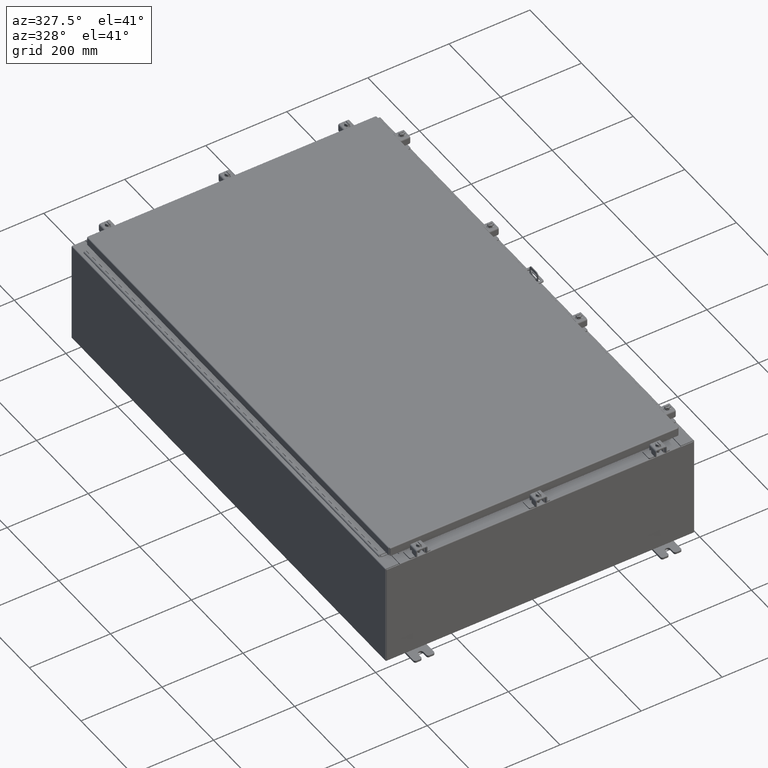
[diagram: clean part render]
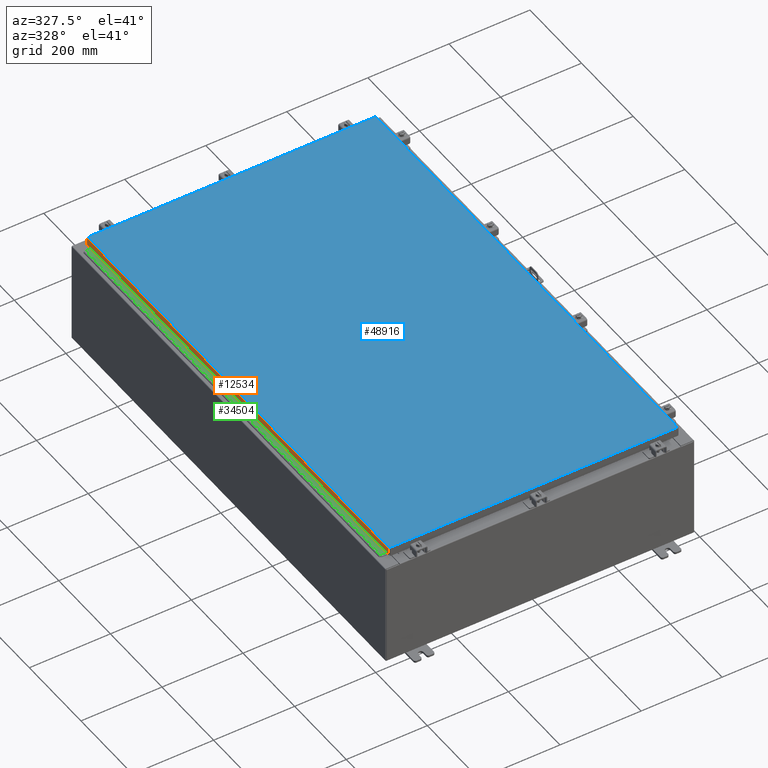
[diagram: same view with three faces highlighted in distinct colors, each labeled with its STEP entity id]
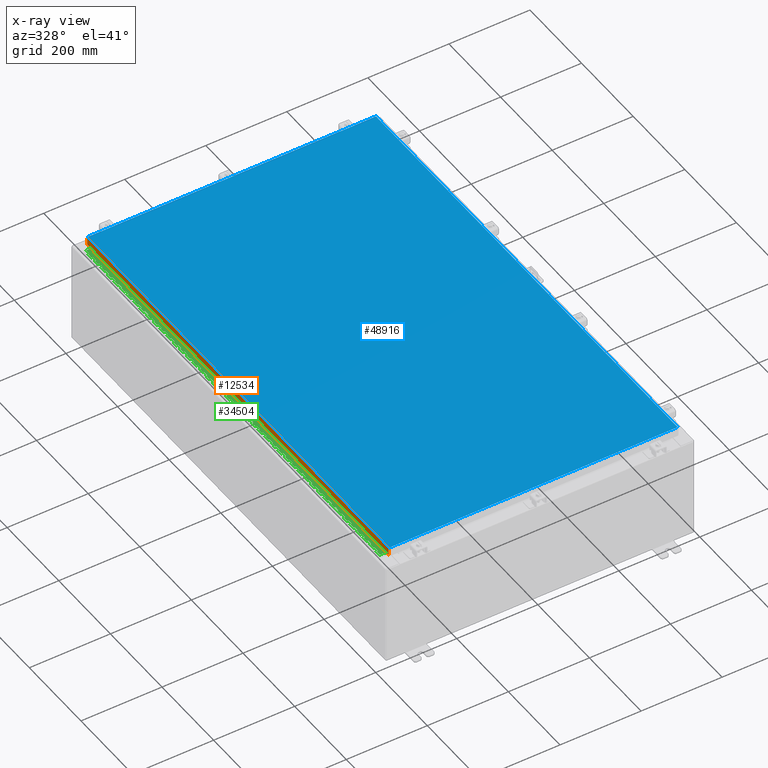
[diagram: x-ray of the same camera — body ghosted, the three highlighted faces saturated]
A machine part, auxiliary view with three faces highlighted in distinct colors.
The next image is the same camera in x-ray (body ghosted, the three faces saturated) — at least one of them is partly hidden behind the body in this view.
Their STEP definitions:

[orange] entity #12534 — the highlighted planar face has unit normal (1, 0, -0).
#721 = ORIENTED_EDGE ( 'NONE', *, *, #33949, .T. ) ;
#845 = CARTESIAN_POINT ( 'NONE',  ( -14.07799999999999800, -23.09400000000000100, -0.08770000000000026400 ) ) ;
#1907 = EDGE_LOOP ( 'NONE', ( #33372, #721, #47705, #46908 ) ) ;
#3150 = CARTESIAN_POINT ( 'NONE',  ( -14.07799999999999800, 23.00515786437627200, 2.032494907286211900E-013 ) ) ;
#6805 = CARTESIAN_POINT ( 'NONE',  ( -14.07799999999999800, 0.0000000000000000000, 4.370956789862821100E-014 ) ) ;
#6963 = VECTOR ( 'NONE', #25199, 39.37007874015748100 ) ;
#9944 = CARTESIAN_POINT ( 'NONE',  ( -14.07799999999999900, -23.00515786437626900, -0.7950000000000007100 ) ) ;
#10603 = DIRECTION ( 'NONE',  ( -3.034122441942816500E-015, 6.982962677686267500E-015, -1.000000000000000000 ) ) ;
#10899 = DIRECTION ( 'NONE',  ( -3.034122441942816500E-015, 0.0000000000000000000, -1.000000000000000000 ) ) ;
#12534 = ADVANCED_FACE ( 'NONE', ( #32569 ), #31156, .F. ) ;
#12705 = EDGE_CURVE ( 'NONE', #43150, #28881, #14111, .T. ) ;
#14093 = VERTEX_POINT ( 'NONE', #31189 ) ;
#14111 = LINE ( 'NONE', #28129, #34450 ) ;
#19504 = DIRECTION ( 'NONE',  ( -3.034122441942816500E-015, 6.982962677686267500E-015, -1.000000000000000000 ) ) ;
#25199 = DIRECTION ( 'NONE',  ( 3.678869116736826000E-031, -1.000000000000000000, -1.084461527917214800E-045 ) ) ;
#27995 = EDGE_CURVE ( 'NONE', #14093, #36580, #38101, .T. ) ;
#28129 = CARTESIAN_POINT ( 'NONE',  ( -14.07799999999999900, -23.09400000000000100, -0.7950000000000007100 ) ) ;
#28219 = CARTESIAN_POINT ( 'NONE',  ( -14.07799999999999800, -23.00515786437627200, -0.08770000000000026400 ) ) ;
#28725 = VECTOR ( 'NONE', #19504, 39.37007874015748100 ) ;
#28881 = VERTEX_POINT ( 'NONE', #32072 ) ;
#31156 = PLANE ( 'NONE',  #44997 ) ;
#31189 = CARTESIAN_POINT ( 'NONE',  ( -14.07799999999999800, 23.00515786437627200, -0.08770000000000026400 ) ) ;
#32072 = CARTESIAN_POINT ( 'NONE',  ( -14.07799999999999900, 23.00515786437627600, -0.7949999999999941600 ) ) ;
#32208 = DIRECTION ( 'NONE',  ( -0.0000000000000000000, 1.000000000000000000, 1.212498568245375000E-016 ) ) ;
#32569 = FACE_OUTER_BOUND ( 'NONE', #1907, .T. ) ;
#33372 = ORIENTED_EDGE ( 'NONE', *, *, #27995, .F. ) ;
#33949 = EDGE_CURVE ( 'NONE', #14093, #28881, #39516, .T. ) ;
#34450 = VECTOR ( 'NONE', #32208, 39.37007874015748100 ) ;
#34927 = CARTESIAN_POINT ( 'NONE',  ( -14.07799999999999800, -23.00515786437627200, -0.07470000000000015500 ) ) ;
#35226 = DIRECTION ( 'NONE',  ( 1.000000000000000000, 3.678869116736826000E-031, -3.034122441942816500E-015 ) ) ;
#36580 = VERTEX_POINT ( 'NONE', #28219 ) ;
#38101 = LINE ( 'NONE', #845, #6963 ) ;
#39516 = LINE ( 'NONE', #3150, #28725 ) ;
#43150 = VERTEX_POINT ( 'NONE', #9944 ) ;
#44997 = AXIS2_PLACEMENT_3D ( 'NONE', #6805, #35226, #10899 ) ;
#45190 = LINE ( 'NONE', #34927, #47719 ) ;
#46908 = ORIENTED_EDGE ( 'NONE', *, *, #48354, .F. ) ;
#47705 = ORIENTED_EDGE ( 'NONE', *, *, #12705, .F. ) ;
#47719 = VECTOR ( 'NONE', #10603, 39.37007874015748100 ) ;
#48354 = EDGE_CURVE ( 'NONE', #36580, #43150, #45190, .T. ) ;

[blue] entity #48916 — the highlighted planar face has unit normal (0, 0, -1).
#632 = VECTOR ( 'NONE', #7742, 39.37007874015748100 ) ;
#841 = LINE ( 'NONE', #38230, #52342 ) ;
#1571 = LINE ( 'NONE', #13588, #20679 ) ;
#7742 = DIRECTION ( 'NONE',  ( 0.0000000000000000000, 1.000000000000000000, 0.0000000000000000000 ) ) ;
#11102 = DIRECTION ( 'NONE',  ( 0.0000000000000000000, 0.0000000000000000000, -1.000000000000000000 ) ) ;
#11681 = LINE ( 'NONE', #15371, #22452 ) ;
#12574 = ORIENTED_EDGE ( 'NONE', *, *, #13797, .T. ) ;
#13588 = CARTESIAN_POINT ( 'NONE',  ( -13.99029999999999800, -23.00630000000000300, 2.185478394931410600E-015 ) ) ;
#13797 = EDGE_CURVE ( 'NONE', #43932, #40844, #11681, .T. ) ;
#14504 = EDGE_CURVE ( 'NONE', #23582, #43932, #841, .T. ) ;
#15371 = CARTESIAN_POINT ( 'NONE',  ( -13.99029999999999800, 23.00630000000000300, 0.0000000000000000000 ) ) ;
#17628 = DIRECTION ( 'NONE',  ( 1.000000000000000000, -0.0000000000000000000, -0.0000000000000000000 ) ) ;
#18304 = ORIENTED_EDGE ( 'NONE', *, *, #14504, .T. ) ;
#19064 = PLANE ( 'NONE',  #49199 ) ;
#20679 = VECTOR ( 'NONE', #17628, 39.37007874015748100 ) ;
#21103 = VERTEX_POINT ( 'NONE', #38733 ) ;
#21884 = DIRECTION ( 'NONE',  ( -1.000000000000000000, -0.0000000000000000000, -0.0000000000000000000 ) ) ;
#22265 = LINE ( 'NONE', #36137, #632 ) ;
#22452 = VECTOR ( 'NONE', #39729, 39.37007874015748100 ) ;
#23168 = EDGE_LOOP ( 'NONE', ( #37895, #41665, #18304, #12574 ) ) ;
#23177 = CARTESIAN_POINT ( 'NONE',  ( -13.99029999999999800, 23.00630000000001000, 0.0000000000000000000 ) ) ;
#23582 = VERTEX_POINT ( 'NONE', #33054 ) ;
#30475 = FACE_OUTER_BOUND ( 'NONE', #23168, .T. ) ;
#33054 = CARTESIAN_POINT ( 'NONE',  ( 13.99029999999999800, 23.00630000000001000, 2.185478394931410600E-015 ) ) ;
#34575 = EDGE_CURVE ( 'NONE', #21103, #23582, #22265, .T. ) ;
#36006 = CARTESIAN_POINT ( 'NONE',  ( -13.99029999999999800, -23.00630000000000300, 2.185478394931410600E-015 ) ) ;
#36137 = CARTESIAN_POINT ( 'NONE',  ( 13.99029999999999800, -23.00630000000000300, 0.0000000000000000000 ) ) ;
#37895 = ORIENTED_EDGE ( 'NONE', *, *, #51227, .T. ) ;
#38230 = CARTESIAN_POINT ( 'NONE',  ( 13.99029999999999800, 23.00630000000001000, 2.185478394931410600E-015 ) ) ;
#38733 = CARTESIAN_POINT ( 'NONE',  ( 13.99029999999999800, -23.00630000000000300, 0.0000000000000000000 ) ) ;
#39501 = DIRECTION ( 'NONE',  ( -1.000000000000000000, 0.0000000000000000000, -0.0000000000000000000 ) ) ;
#39729 = DIRECTION ( 'NONE',  ( 0.0000000000000000000, -1.000000000000000000, 0.0000000000000000000 ) ) ;
#40844 = VERTEX_POINT ( 'NONE', #36006 ) ;
#41665 = ORIENTED_EDGE ( 'NONE', *, *, #34575, .T. ) ;
#43932 = VERTEX_POINT ( 'NONE', #23177 ) ;
#48916 = ADVANCED_FACE ( 'NONE', ( #30475 ), #19064, .F. ) ;
#49199 = AXIS2_PLACEMENT_3D ( 'NONE', #51574, #11102, #39501 ) ;
#51227 = EDGE_CURVE ( 'NONE', #40844, #21103, #1571, .T. ) ;
#51574 = CARTESIAN_POINT ( 'NONE',  ( 0.0000000000000000000, 0.0000000000000000000, 0.0000000000000000000 ) ) ;
#52342 = VECTOR ( 'NONE', #21884, 39.37007874015748100 ) ;

[green] entity #34504 — the highlighted planar face has unit normal (-0, -0, 1).
#22 = ORIENTED_EDGE ( 'NONE', *, *, #9007, .F. ) ;
#27 = VERTEX_POINT ( 'NONE', #41857 ) ;
#47 = VECTOR ( 'NONE', #50792, 39.37007874015748100 ) ;
#182 = ORIENTED_EDGE ( 'NONE', *, *, #20696, .F. ) ;
#236 = CARTESIAN_POINT ( 'NONE',  ( -0.6869999999999965000, 0.8004999999999870000, -12.00000000000001200 ) ) ;
#253 = DIRECTION ( 'NONE',  ( 3.389037039080714000E-015, 1.000000000000000000, -8.179326188721756800E-031 ) ) ;
#318 = DIRECTION ( 'NONE',  ( 3.389037039080714000E-015, 1.000000000000000000, -8.179326188721756800E-031 ) ) ;
#324 = ORIENTED_EDGE ( 'NONE', *, *, #30918, .F. ) ;
#328 = EDGE_LOOP ( 'NONE', ( #36114, #24699, #22, #31565, #3988, #10443, #31783, #52716, #27188, #32351, #20503, #15432, #36637, #3535, #324, #30247, #32679, #14122, #26194, #10129, #51292, #28314, #45681, #25555, #31322, #9270, #18105, #25742, #24468, #39707, #40770, #29972, #25975, #46854, #2138, #29098, #7738, #24258, #20273, #46104, #19973, #7933, #9451, #45862, #25475, #32304, #35895, #543, #4210, #35644, #8990, #36133, #19959, #26313, #47953, #25301, #19714, #50842, #7488, #31446, #5603, #41709, #51504, #46473, #41199, #4645, #51690, #182, #443, #36857, #36286, #13800, #37744, #22753, #6073, #25411, #45626, #5527, #11016, #48500, #16042, #16297, #14153, #12400, #20104, #21151, #15708, #840, #11402, #48298, #32233, #20659, #41442, #739, #10576, #8415, #5331, #3531, #45323, #11265, #15441, #4317, #31732, #49346, #46090, #4502, #36973, #35950, #35054, #10420, #19390, #27460, #27112, #42116, #21477, #24665, #1580, #41565, #40919, #4365, #8611, #38814, #47906, #15761, #42010, #21320, #14749, #12823, #39285, #28318, #15453, #14821, #20243, #4077, #45181, #42120, #41172, #48360, #26386, #41396, #28686, #24002, #33347, #43436, #6155, #3671, #29509, #28606, #15998, #13803, #19675, #18045, #3186, #34988, #7448, #27620, #45946, #16989, #19534, #14210, #1169, #40127, #6761, #2071, #8578, #38131, #49556, #34096, #52144, #40140, #33066, #34135, #48810, #26602, #31842, #42973, #15417, #12332, #33667, #11392, #6164, #35593 ) ) ;
#350 = VERTEX_POINT ( 'NONE', #14508 ) ;
#362 = EDGE_CURVE ( 'NONE', #39985, #45495, #47229, .T. ) ;
#443 = ORIENTED_EDGE ( 'NONE', *, *, #2398, .T. ) ;
#490 = VECTOR ( 'NONE', #24999, 39.37007874015748100 ) ;
#543 = ORIENTED_EDGE ( 'NONE', *, *, #42510, .F. ) ;
#557 = VERTEX_POINT ( 'NONE', #52473 ) ;
#561 = CARTESIAN_POINT ( 'NONE',  ( -0.6869999999999987200, 0.8004999999999978800, -19.50000000000002500 ) ) ;
#609 = CARTESIAN_POINT ( 'NONE',  ( -0.6869999999999877300, 0.5504999999999989900, -28.00000000000002500 ) ) ;
#739 = ORIENTED_EDGE ( 'NONE', *, *, #38932, .F. ) ;
#775 = VERTEX_POINT ( 'NONE', #21186 ) ;
#840 = ORIENTED_EDGE ( 'NONE', *, *, #46492, .F. ) ;
#861 = VECTOR ( 'NONE', #253, 39.37007874015748100 ) ;
#889 = CARTESIAN_POINT ( 'NONE',  ( -0.6869999999999856200, 0.6754999999999897800, -45.00000000000000000 ) ) ;
#890 = LINE ( 'NONE', #40753, #9186 ) ;
#957 = CARTESIAN_POINT ( 'NONE',  ( -0.6869999999999965000, 0.8004999999999892200, -14.50000000000002500 ) ) ;
#1006 = LINE ( 'NONE', #9751, #34736 ) ;
#1021 = CARTESIAN_POINT ( 'NONE',  ( -0.6869999999999856200, 0.8005000000000001000, -6.500000000000012400 ) ) ;
#1090 = CARTESIAN_POINT ( 'NONE',  ( -0.6869999999999856200, 0.6754999999999985500, -23.00000000000002500 ) ) ;
#1167 = CARTESIAN_POINT ( 'NONE',  ( -0.6869999999999987200, 0.5504999999999880000, -14.50000000000002500 ) ) ;
#1169 = ORIENTED_EDGE ( 'NONE', *, *, #1248, .T. ) ;
#1212 = EDGE_CURVE ( 'NONE', #350, #9492, #21023, .T. ) ;
#1231 = LINE ( 'NONE', #43761, #32434 ) ;
#1248 = EDGE_CURVE ( 'NONE', #5191, #5997, #39558, .T. ) ;
#1260 = DIRECTION ( 'NONE',  ( -3.389037039080714000E-015, -1.000000000000000000, 8.179326188721756800E-031 ) ) ;
#1278 = VECTOR ( 'NONE', #17415, 39.37007874015748100 ) ;
#1387 = VERTEX_POINT ( 'NONE', #49548 ) ;
#1465 = LINE ( 'NONE', #9602, #32687 ) ;
#1551 = CARTESIAN_POINT ( 'NONE',  ( -0.6869999999999965000, 0.5504999999999989900, -3.499999999999999100 ) ) ;
#1555 = VERTEX_POINT ( 'NONE', #34542 ) ;
#1560 = CARTESIAN_POINT ( 'NONE',  ( -0.6869999999999856200, 0.6754999999999897800, -45.00000000000000000 ) ) ;
#1568 = VERTEX_POINT ( 'NONE', #50852 ) ;
#1580 = ORIENTED_EDGE ( 'NONE', *, *, #12458, .T. ) ;
#1591 = CARTESIAN_POINT ( 'NONE',  ( -0.6869999999999856200, 0.6755000000000007700, -35.50000000000000700 ) ) ;
#1609 = CARTESIAN_POINT ( 'NONE',  ( -0.6869999999999965000, 0.6754999999999876700, -7.000000000000011500 ) ) ;
#1634 = CARTESIAN_POINT ( 'NONE',  ( -0.6869999999999987200, 0.6755000000000007700, -4.000000000000005300 ) ) ;
#1639 = VERTEX_POINT ( 'NONE', #27085 ) ;
#1662 = CARTESIAN_POINT ( 'NONE',  ( -0.6869999999999965000, 0.8005000000000001000, -32.50000000000000700 ) ) ;
#1692 = CARTESIAN_POINT ( 'NONE',  ( -0.6869999999999856200, 0.6754999999999985500, -24.00000000000002500 ) ) ;
#1751 = LINE ( 'NONE', #20909, #490 ) ;
#1754 = EDGE_CURVE ( 'NONE', #6811, #11000, #8374, .T. ) ;
#1765 = DIRECTION ( 'NONE',  ( -2.925687882238429300E-028, -8.181025000927830900E-031, 1.000000000000000000 ) ) ;
#1774 = CARTESIAN_POINT ( 'NONE',  ( -0.6869999999999965000, 0.8005000000000001000, -0.5000000000000017800 ) ) ;
#1877 = VECTOR ( 'NONE', #43554, 39.37007874015748100 ) ;
#2007 = LINE ( 'NONE', #49800, #10331 ) ;
#2071 = ORIENTED_EDGE ( 'NONE', *, *, #9982, .F. ) ;
#2138 = ORIENTED_EDGE ( 'NONE', *, *, #14048, .F. ) ;
#2147 = EDGE_CURVE ( 'NONE', #12335, #23158, #29932, .T. ) ;
#2219 = DIRECTION ( 'NONE',  ( -2.925687882238429300E-028, -8.181025000927830900E-031, 1.000000000000000000 ) ) ;
#2225 = CARTESIAN_POINT ( 'NONE',  ( -0.6869999999999856200, 0.5504999999999902200, -17.00000000000002500 ) ) ;
#2256 = VERTEX_POINT ( 'NONE', #31642 ) ;
#2270 = VERTEX_POINT ( 'NONE', #43906 ) ;
#2312 = VERTEX_POINT ( 'NONE', #31815 ) ;
#2316 = VERTEX_POINT ( 'NONE', #27727 ) ;
#2326 = VECTOR ( 'NONE', #18955, 39.37007874015748100 ) ;
#2373 = DIRECTION ( 'NONE',  ( 2.925687882238429300E-028, 8.181025000927830900E-031, -1.000000000000000000 ) ) ;
#2398 = EDGE_CURVE ( 'NONE', #50515, #27297, #50846, .T. ) ;
#2524 = EDGE_CURVE ( 'NONE', #23385, #9488, #33699, .T. ) ;
#2552 = CARTESIAN_POINT ( 'NONE',  ( -0.6869999999999856200, 0.5504999999999924400, -19.50000000000002500 ) ) ;
#2625 = CARTESIAN_POINT ( 'NONE',  ( -0.6869999999999987200, 0.6755000000000007700, -5.000000000000000000 ) ) ;
#2663 = CARTESIAN_POINT ( 'NONE',  ( -0.6869999999999856200, 0.5504999999999880000, -39.49999999999999300 ) ) ;
#2665 = CARTESIAN_POINT ( 'NONE',  ( -0.6869999999999856200, 0.8005000000000001000, -4.500000000000002700 ) ) ;
#2710 = DIRECTION ( 'NONE',  ( 2.925687882238429300E-028, 8.181025000927830900E-031, -1.000000000000000000 ) ) ;
#2765 = LINE ( 'NONE', #9301, #24415 ) ;
#2773 = LINE ( 'NONE', #7731, #12352 ) ;
#2794 = VECTOR ( 'NONE', #18780, 39.37007874015748100 ) ;
#2855 = CARTESIAN_POINT ( 'NONE',  ( -0.6869999999999877300, 0.5505000000000011000, -5.000000000000000000 ) ) ;
#2869 = EDGE_CURVE ( 'NONE', #33391, #3753, #36594, .T. ) ;
#2872 = VECTOR ( 'NONE', #3245, 39.37007874015748100 ) ;
#2899 = VERTEX_POINT ( 'NONE', #1591 ) ;
#2901 = VERTEX_POINT ( 'NONE', #5706 ) ;
#2910 = LINE ( 'NONE', #7671, #24551 ) ;
#2914 = LINE ( 'NONE', #5405, #34099 ) ;
#2934 = CARTESIAN_POINT ( 'NONE',  ( -0.6869999999999856200, 0.6754999999999985500, -22.00000000000002500 ) ) ;
#2992 = CARTESIAN_POINT ( 'NONE',  ( -0.6869999999999965000, 0.6754999999999876700, -41.49999999999999300 ) ) ;
#3067 = VECTOR ( 'NONE', #37699, 39.37007874015748100 ) ;
#3082 = PLANE ( 'NONE',  #32810 ) ;
#3087 = CARTESIAN_POINT ( 'NONE',  ( -0.6869999999999987200, 0.5504999999999880000, -44.00000000000000700 ) ) ;
#3158 = DIRECTION ( 'NONE',  ( 3.389037039080714000E-015, 1.000000000000000000, -8.179326188721756800E-031 ) ) ;
#3186 = ORIENTED_EDGE ( 'NONE', *, *, #13009, .T. ) ;
#3217 = CARTESIAN_POINT ( 'NONE',  ( -0.6869999999999856200, 0.6754999999999897800, -45.00000000000000000 ) ) ;
#3220 = EDGE_CURVE ( 'NONE', #29652, #34546, #32132, .T. ) ;
#3245 = DIRECTION ( 'NONE',  ( 2.925687882238429300E-028, 8.181025000927830900E-031, -1.000000000000000000 ) ) ;
#3246 = VECTOR ( 'NONE', #40465, 39.37007874015748100 ) ;
#3257 = EDGE_CURVE ( 'NONE', #9492, #11269, #9227, .T. ) ;
#3292 = EDGE_CURVE ( 'NONE', #5191, #12718, #17445, .T. ) ;
#3332 = EDGE_CURVE ( 'NONE', #8650, #7481, #37824, .T. ) ;
#3353 = VERTEX_POINT ( 'NONE', #36955 ) ;
#3377 = VERTEX_POINT ( 'NONE', #8729 ) ;
#3442 = VECTOR ( 'NONE', #43546, 39.37007874015748100 ) ;
#3462 = VECTOR ( 'NONE', #10934, 39.37007874015748100 ) ;
#3483 = LINE ( 'NONE', #18698, #34657 ) ;
#3519 = CARTESIAN_POINT ( 'NONE',  ( -0.6869999999999965000, 0.5504999999999989900, -27.50000000000002800 ) ) ;
#3531 = ORIENTED_EDGE ( 'NONE', *, *, #47378, .F. ) ;
#3535 = ORIENTED_EDGE ( 'NONE', *, *, #1754, .F. ) ;
#3538 = LINE ( 'NONE', #41170, #14379 ) ;
#3594 = EDGE_CURVE ( 'NONE', #50195, #34620, #37170, .T. ) ;
#3671 = ORIENTED_EDGE ( 'NONE', *, *, #3865, .F. ) ;
#3753 = VERTEX_POINT ( 'NONE', #27898 ) ;
#3862 = DIRECTION ( 'NONE',  ( 2.925687882238429300E-028, 8.181025000927830900E-031, -1.000000000000000000 ) ) ;
#3865 = EDGE_CURVE ( 'NONE', #12079, #20244, #24412, .T. ) ;
#3898 = EDGE_CURVE ( 'NONE', #9375, #10367, #35221, .T. ) ;
#3936 = LINE ( 'NONE', #26540, #45950 ) ;
#3960 = LINE ( 'NONE', #35751, #45977 ) ;
#3988 = ORIENTED_EDGE ( 'NONE', *, *, #22971, .T. ) ;
#4066 = EDGE_CURVE ( 'NONE', #16558, #15819, #14229, .T. ) ;
#4077 = ORIENTED_EDGE ( 'NONE', *, *, #6778, .F. ) ;
#4083 = DIRECTION ( 'NONE',  ( -3.389037039080714000E-015, -1.000000000000000000, 8.179326188721756800E-031 ) ) ;
#4094 = LINE ( 'NONE', #46063, #46115 ) ;
#4166 = CARTESIAN_POINT ( 'NONE',  ( -0.6869999999999987200, 0.6754999999999920000, -16.50000000000002500 ) ) ;
#4188 = CARTESIAN_POINT ( 'NONE',  ( -0.6869999999999965000, 0.6755000000000007700, -30.00000000000002500 ) ) ;
#4202 = EDGE_CURVE ( 'NONE', #28967, #34546, #7875, .T. ) ;
#4210 = ORIENTED_EDGE ( 'NONE', *, *, #28202, .T. ) ;
#4237 = CARTESIAN_POINT ( 'NONE',  ( -0.6869999999999877300, 0.8004999999999913300, -15.00000000000002300 ) ) ;
#4317 = ORIENTED_EDGE ( 'NONE', *, *, #49489, .F. ) ;
#4365 = ORIENTED_EDGE ( 'NONE', *, *, #45395, .F. ) ;
#4434 = EDGE_CURVE ( 'NONE', #21666, #2316, #19254, .T. ) ;
#4455 = VERTEX_POINT ( 'NONE', #2992 ) ;
#4486 = LINE ( 'NONE', #21928, #45242 ) ;
#4502 = ORIENTED_EDGE ( 'NONE', *, *, #4202, .F. ) ;
#4645 = ORIENTED_EDGE ( 'NONE', *, *, #23988, .F. ) ;
#4671 = CARTESIAN_POINT ( 'NONE',  ( -0.6869999999999856200, 0.5504999999999880000, -40.00000000000000000 ) ) ;
#4709 = VERTEX_POINT ( 'NONE', #33548 ) ;
#4796 = LINE ( 'NONE', #1021, #25168 ) ;
#4842 = VERTEX_POINT ( 'NONE', #38332 ) ;
#4883 = VERTEX_POINT ( 'NONE', #18397 ) ;
#4960 = VERTEX_POINT ( 'NONE', #14865 ) ;
#5076 = CARTESIAN_POINT ( 'NONE',  ( -0.6869999999999987200, 0.5504999999999989900, -33.50000000000000000 ) ) ;
#5096 = VECTOR ( 'NONE', #26170, 39.37007874015748100 ) ;
#5104 = DIRECTION ( 'NONE',  ( -3.389037039080714000E-015, -1.000000000000000000, 8.179326188721756800E-031 ) ) ;
#5183 = DIRECTION ( 'NONE',  ( -2.925687882238429300E-028, -8.181025000927830900E-031, 1.000000000000000000 ) ) ;
#5191 = VERTEX_POINT ( 'NONE', #44903 ) ;
#5204 = VECTOR ( 'NONE', #51187, 39.37007874015748100 ) ;
#5229 = EDGE_CURVE ( 'NONE', #31683, #47290, #50955, .T. ) ;
#5254 = CARTESIAN_POINT ( 'NONE',  ( -0.6869999999999987200, 0.8005000000000001000, -30.00000000000002500 ) ) ;
#5259 = LINE ( 'NONE', #48587, #16074 ) ;
#5280 = CARTESIAN_POINT ( 'NONE',  ( -0.6869999999999965000, 0.8004999999999892200, -13.00000000000002500 ) ) ;
#5282 = CARTESIAN_POINT ( 'NONE',  ( -0.6869999999999965000, 0.6754999999999964400, -20.50000000000002800 ) ) ;
#5331 = ORIENTED_EDGE ( 'NONE', *, *, #40650, .T. ) ;
#5405 = CARTESIAN_POINT ( 'NONE',  ( -0.6869999999999856200, 0.6754999999999897800, -45.00000000000000000 ) ) ;
#5483 = EDGE_CURVE ( 'NONE', #37399, #22963, #5790, .T. ) ;
#5486 = DIRECTION ( 'NONE',  ( 2.925687882238429300E-028, 8.181025000927830900E-031, -1.000000000000000000 ) ) ;
#5488 = CARTESIAN_POINT ( 'NONE',  ( -0.6869999999999965000, 0.5505000000000011000, -4.500000000000002700 ) ) ;
#5524 = CARTESIAN_POINT ( 'NONE',  ( -0.6869999999999987200, 0.6755000000000007700, -3.000000000000001800 ) ) ;
#5527 = ORIENTED_EDGE ( 'NONE', *, *, #10912, .F. ) ;
#5571 = DIRECTION ( 'NONE',  ( 2.925687882238429300E-028, 8.181025000927830900E-031, -1.000000000000000000 ) ) ;
#5603 = ORIENTED_EDGE ( 'NONE', *, *, #42320, .T. ) ;
#5648 = CARTESIAN_POINT ( 'NONE',  ( -0.6869999999999987200, 0.5504999999999989900, -22.00000000000002500 ) ) ;
#5659 = DIRECTION ( 'NONE',  ( 2.925687882238429300E-028, 8.181025000927830900E-031, -1.000000000000000000 ) ) ;
#5666 = DIRECTION ( 'NONE',  ( -2.925687882238429300E-028, -8.181025000927830900E-031, 1.000000000000000000 ) ) ;
#5680 = EDGE_CURVE ( 'NONE', #31806, #39080, #17193, .T. ) ;
#5706 = CARTESIAN_POINT ( 'NONE',  ( -0.6869999999999856200, 0.5504999999999880000, -39.49999999999999300 ) ) ;
#5741 = DIRECTION ( 'NONE',  ( -3.389037039080714000E-015, -1.000000000000000000, 8.179326188721756800E-031 ) ) ;
#5779 = DIRECTION ( 'NONE',  ( -3.389037039080714000E-015, -1.000000000000000000, 8.179326188721756800E-031 ) ) ;
#5786 = DIRECTION ( 'NONE',  ( -3.389037039080714000E-015, -1.000000000000000000, 8.179326188721756800E-031 ) ) ;
#5790 = LINE ( 'NONE', #22813, #47789 ) ;
#5933 = EDGE_CURVE ( 'NONE', #12718, #50195, #15272, .T. ) ;
#5947 = VECTOR ( 'NONE', #47240, 39.37007874015748100 ) ;
#5997 = VERTEX_POINT ( 'NONE', #2625 ) ;
#6019 = EDGE_CURVE ( 'NONE', #2899, #21693, #11478, .T. ) ;
#6073 = ORIENTED_EDGE ( 'NONE', *, *, #17915, .F. ) ;
#6077 = CARTESIAN_POINT ( 'NONE',  ( -0.6869999999999987200, 0.5504999999999989900, -32.00000000000002800 ) ) ;
#6104 = VECTOR ( 'NONE', #33328, 39.37007874015748100 ) ;
#6105 = VERTEX_POINT ( 'NONE', #48166 ) ;
#6129 = VERTEX_POINT ( 'NONE', #3519 ) ;
#6145 = EDGE_CURVE ( 'NONE', #49065, #47194, #25348, .T. ) ;
#6154 = LINE ( 'NONE', #16176, #16937 ) ;
#6155 = ORIENTED_EDGE ( 'NONE', *, *, #13714, .T. ) ;
#6164 = ORIENTED_EDGE ( 'NONE', *, *, #37051, .T. ) ;
#6180 = CARTESIAN_POINT ( 'NONE',  ( -0.6869999999999856200, 0.8005000000000001000, -5.000000000000000000 ) ) ;
#6259 = EDGE_CURVE ( 'NONE', #48802, #44348, #22795, .T. ) ;
#6280 = DIRECTION ( 'NONE',  ( -2.925687882238429300E-028, -8.181025000927830900E-031, 1.000000000000000000 ) ) ;
#6285 = VERTEX_POINT ( 'NONE', #45485 ) ;
#6309 = EDGE_CURVE ( 'NONE', #20165, #37938, #17672, .T. ) ;
#6319 = EDGE_CURVE ( 'NONE', #38680, #20165, #27252, .T. ) ;
#6347 = CARTESIAN_POINT ( 'NONE',  ( -0.6869999999999856200, 0.6754999999999897800, -45.00000000000000000 ) ) ;
#6362 = DIRECTION ( 'NONE',  ( -2.925687882238429300E-028, -8.181025000927830900E-031, 1.000000000000000000 ) ) ;
#6376 = DIRECTION ( 'NONE',  ( 3.389037039080714000E-015, 1.000000000000000000, -8.179326188721756800E-031 ) ) ;
#6398 = CARTESIAN_POINT ( 'NONE',  ( -0.6869999999999856200, 0.5505000000000011000, -5.500000000000006200 ) ) ;
#6411 = VERTEX_POINT ( 'NONE', #9545 ) ;
#6509 = CARTESIAN_POINT ( 'NONE',  ( -0.6869999999999965000, 0.5504999999999989900, -26.50000000000002800 ) ) ;
#6513 = CARTESIAN_POINT ( 'NONE',  ( -0.6869999999999856200, 0.6754999999999876700, -12.00000000000001200 ) ) ;
#6575 = VECTOR ( 'NONE', #38039, 39.37007874015748100 ) ;
#6650 = CARTESIAN_POINT ( 'NONE',  ( -0.6869999999999965000, 0.6754999999999876700, -9.500000000000012400 ) ) ;
#6673 = CARTESIAN_POINT ( 'NONE',  ( -0.6869999999999856200, 0.6754999999999897800, -45.00000000000000000 ) ) ;
#6674 = VECTOR ( 'NONE', #29975, 39.37007874015748100 ) ;
#6699 = LINE ( 'NONE', #37931, #44872 ) ;
#6715 = VECTOR ( 'NONE', #51089, 39.37007874015748100 ) ;
#6761 = ORIENTED_EDGE ( 'NONE', *, *, #47603, .F. ) ;
#6770 = LINE ( 'NONE', #21673, #37918 ) ;
#6778 = EDGE_CURVE ( 'NONE', #4883, #19888, #27203, .T. ) ;
#6798 = CARTESIAN_POINT ( 'NONE',  ( -0.6869999999999856200, 0.8004999999999913300, -17.50000000000002100 ) ) ;
#6811 = VERTEX_POINT ( 'NONE', #28892 ) ;
#6837 = DIRECTION ( 'NONE',  ( -2.925687882238429300E-028, -8.181025000927830900E-031, 1.000000000000000000 ) ) ;
#6850 = VERTEX_POINT ( 'NONE', #4671 ) ;
#6892 = CARTESIAN_POINT ( 'NONE',  ( -0.6869999999999987200, 0.5504999999999989900, -20.50000000000002800 ) ) ;
#7011 = LINE ( 'NONE', #5488, #35600 ) ;
#7025 = EDGE_CURVE ( 'NONE', #24124, #27297, #9453, .T. ) ;
#7067 = LINE ( 'NONE', #23425, #26125 ) ;
#7135 = VERTEX_POINT ( 'NONE', #20562 ) ;
#7215 = EDGE_CURVE ( 'NONE', #12963, #25359, #1751, .T. ) ;
#7216 = DIRECTION ( 'NONE',  ( 3.369016658928389100E-015, 1.000000000000000000, -8.141472806998861700E-031 ) ) ;
#7258 = CARTESIAN_POINT ( 'NONE',  ( -0.6869999999999987200, 0.5504999999999989900, -2.500000000000000000 ) ) ;
#7346 = DIRECTION ( 'NONE',  ( -2.925687882238429300E-028, -8.181025000927830900E-031, 1.000000000000000000 ) ) ;
#7447 = LINE ( 'NONE', #17779, #38583 ) ;
#7448 = ORIENTED_EDGE ( 'NONE', *, *, #40825, .F. ) ;
#7481 = VERTEX_POINT ( 'NONE', #10599 ) ;
#7482 = LINE ( 'NONE', #16760, #37343 ) ;
#7485 = CARTESIAN_POINT ( 'NONE',  ( -0.6869999999999856200, 0.6754999999999897800, -45.00000000000000000 ) ) ;
#7488 = ORIENTED_EDGE ( 'NONE', *, *, #2524, .F. ) ;
#7493 = EDGE_CURVE ( 'NONE', #52157, #17279, #29749, .T. ) ;
#7503 = CARTESIAN_POINT ( 'NONE',  ( -0.6869999999999856200, 0.6754999999999897800, -45.00000000000000000 ) ) ;
#7616 = LINE ( 'NONE', #44749, #27963 ) ;
#7641 = CARTESIAN_POINT ( 'NONE',  ( -0.6869999999999987200, 0.5504999999999989900, -0.5000000000000017800 ) ) ;
#7671 = CARTESIAN_POINT ( 'NONE',  ( -0.6869999999999856200, 0.6754999999999897800, -45.00000000000000000 ) ) ;
#7731 = CARTESIAN_POINT ( 'NONE',  ( -0.6869999999999987200, 0.5504999999999880000, -43.50000000000000000 ) ) ;
#7738 = ORIENTED_EDGE ( 'NONE', *, *, #33280, .T. ) ;
#7793 = EDGE_CURVE ( 'NONE', #8814, #37814, #7482, .T. ) ;
#7826 = LINE ( 'NONE', #40098, #40212 ) ;
#7855 = DIRECTION ( 'NONE',  ( 3.389037039080714000E-015, 1.000000000000000000, -8.179326188721756800E-031 ) ) ;
#7866 = LINE ( 'NONE', #32152, #49775 ) ;
#7875 = LINE ( 'NONE', #23372, #6575 ) ;
#7881 = CARTESIAN_POINT ( 'NONE',  ( -0.6869999999999856200, 0.8005000000000001000, -28.50000000000002500 ) ) ;
#7933 = ORIENTED_EDGE ( 'NONE', *, *, #25952, .F. ) ;
#8064 = VECTOR ( 'NONE', #27396, 39.37007874015748100 ) ;
#8069 = EDGE_CURVE ( 'NONE', #42064, #52414, #16298, .T. ) ;
#8189 = VECTOR ( 'NONE', #41526, 39.37007874015748100 ) ;
#8209 = DIRECTION ( 'NONE',  ( -3.389037039080714000E-015, -1.000000000000000000, 8.179326188721756800E-031 ) ) ;
#8241 = LINE ( 'NONE', #19695, #29836 ) ;
#8320 = VERTEX_POINT ( 'NONE', #28120 ) ;
#8362 = EDGE_CURVE ( 'NONE', #45495, #51394, #1006, .T. ) ;
#8374 = LINE ( 'NONE', #39839, #17853 ) ;
#8415 = ORIENTED_EDGE ( 'NONE', *, *, #37228, .F. ) ;
#8495 = VERTEX_POINT ( 'NONE', #51115 ) ;
#8506 = DIRECTION ( 'NONE',  ( 2.925687882238429300E-028, 8.181025000927830900E-031, -1.000000000000000000 ) ) ;
#8538 = VECTOR ( 'NONE', #52187, 39.37007874015748100 ) ;
#8557 = CARTESIAN_POINT ( 'NONE',  ( -0.6869999999999987200, 0.8004999999999913300, -18.50000000000002500 ) ) ;
#8572 = DIRECTION ( 'NONE',  ( -2.925687882238429300E-028, -8.181025000927830900E-031, 1.000000000000000000 ) ) ;
#8578 = ORIENTED_EDGE ( 'NONE', *, *, #15882, .T. ) ;
#8611 = ORIENTED_EDGE ( 'NONE', *, *, #32501, .T. ) ;
#8615 = VECTOR ( 'NONE', #36368, 39.37007874015748100 ) ;
#8626 = CARTESIAN_POINT ( 'NONE',  ( -0.6869999999999987200, 0.5504999999999880000, -45.00000000000000000 ) ) ;
#8650 = VERTEX_POINT ( 'NONE', #7258 ) ;
#8726 = VECTOR ( 'NONE', #46925, 39.37007874015748100 ) ;
#8727 = VECTOR ( 'NONE', #32210, 39.37007874015748100 ) ;
#8729 = CARTESIAN_POINT ( 'NONE',  ( -0.6869999999999856200, 0.5504999999999880000, -41.49999999999999300 ) ) ;
#8814 = VERTEX_POINT ( 'NONE', #48787 ) ;
#8880 = VERTEX_POINT ( 'NONE', #29093 ) ;
#8884 = CARTESIAN_POINT ( 'NONE',  ( -0.6869999999999856200, 0.5504999999999924400, -18.50000000000002500 ) ) ;
#8931 = VECTOR ( 'NONE', #28646, 39.37007874015748100 ) ;
#8961 = LINE ( 'NONE', #40370, #26739 ) ;
#8990 = ORIENTED_EDGE ( 'NONE', *, *, #7793, .F. ) ;
#9007 = EDGE_CURVE ( 'NONE', #52252, #42345, #6699, .T. ) ;
#9033 = VERTEX_POINT ( 'NONE', #1634 ) ;
#9100 = CARTESIAN_POINT ( 'NONE',  ( -0.6869999999999965000, 0.8005000000000001000, -37.00000000000000000 ) ) ;
#9180 = VECTOR ( 'NONE', #44217, 39.37007874015748100 ) ;
#9186 = VECTOR ( 'NONE', #12350, 39.37007874015748100 ) ;
#9227 = LINE ( 'NONE', #44290, #40371 ) ;
#9259 = VERTEX_POINT ( 'NONE', #47702 ) ;
#9264 = VERTEX_POINT ( 'NONE', #31369 ) ;
#9270 = ORIENTED_EDGE ( 'NONE', *, *, #27894, .F. ) ;
#9301 = CARTESIAN_POINT ( 'NONE',  ( -0.6869999999999856200, 0.6754999999999897800, -45.00000000000000000 ) ) ;
#9360 = CARTESIAN_POINT ( 'NONE',  ( -0.6869999999999987200, 0.5504999999999880000, -13.00000000000002500 ) ) ;
#9366 = LINE ( 'NONE', #15347, #40512 ) ;
#9375 = VERTEX_POINT ( 'NONE', #20118 ) ;
#9383 = VECTOR ( 'NONE', #4083, 39.37007874015748100 ) ;
#9431 = CARTESIAN_POINT ( 'NONE',  ( -0.6869999999999856200, 0.5504999999999924400, -17.50000000000002100 ) ) ;
#9451 = ORIENTED_EDGE ( 'NONE', *, *, #47726, .F. ) ;
#9453 = LINE ( 'NONE', #36035, #51399 ) ;
#9471 = VECTOR ( 'NONE', #38503, 39.37007874015748100 ) ;
#9487 = VECTOR ( 'NONE', #30338, 39.37007874015748100 ) ;
#9488 = VERTEX_POINT ( 'NONE', #49426 ) ;
#9492 = VERTEX_POINT ( 'NONE', #45384 ) ;
#9545 = CARTESIAN_POINT ( 'NONE',  ( -0.6869999999999856200, 0.5504999999999989900, -29.50000000000002500 ) ) ;
#9564 = DIRECTION ( 'NONE',  ( 3.369016658928389900E-015, 1.000000000000000000, -8.141472806998860000E-031 ) ) ;
#9583 = VECTOR ( 'NONE', #13900, 39.37007874015748100 ) ;
#9602 = CARTESIAN_POINT ( 'NONE',  ( -0.6869999999999856200, 0.8005000000000001000, -3.499999999999999100 ) ) ;
#9638 = DIRECTION ( 'NONE',  ( -2.925687882238429300E-028, -8.181025000927830900E-031, 1.000000000000000000 ) ) ;
#9669 = CARTESIAN_POINT ( 'NONE',  ( -0.6869999999999965000, 0.8005000000000001000, -34.50000000000000700 ) ) ;
#9725 = VECTOR ( 'NONE', #18030, 39.37007874015748100 ) ;
#9727 = LINE ( 'NONE', #25113, #20521 ) ;
#9751 = CARTESIAN_POINT ( 'NONE',  ( -0.6869999999999965000, 0.8005000000000001000, -1.999999999999998400 ) ) ;
#9809 = VERTEX_POINT ( 'NONE', #11942 ) ;
#9889 = CARTESIAN_POINT ( 'NONE',  ( -0.6869999999999856200, 0.6754999999999876700, -10.50000000000001200 ) ) ;
#9982 = EDGE_CURVE ( 'NONE', #10583, #35500, #49974, .T. ) ;
#9997 = CARTESIAN_POINT ( 'NONE',  ( -0.6869999999999856200, 0.6754999999999897800, -45.00000000000000000 ) ) ;
#10024 = CARTESIAN_POINT ( 'NONE',  ( -0.6869999999999965000, 0.5504999999999880000, -15.50000000000002500 ) ) ;
#10030 = VERTEX_POINT ( 'NONE', #39474 ) ;
#10129 = ORIENTED_EDGE ( 'NONE', *, *, #22269, .F. ) ;
#10273 = DIRECTION ( 'NONE',  ( 3.389037039080714000E-015, 1.000000000000000000, -8.179326188721756800E-031 ) ) ;
#10331 = VECTOR ( 'NONE', #5183, 39.37007874015748100 ) ;
#10367 = VERTEX_POINT ( 'NONE', #33932 ) ;
#10390 = CARTESIAN_POINT ( 'NONE',  ( -0.6869999999999987200, 0.5504999999999989900, -24.00000000000002500 ) ) ;
#10420 = ORIENTED_EDGE ( 'NONE', *, *, #26656, .F. ) ;
#10427 = CARTESIAN_POINT ( 'NONE',  ( -0.6869999999999965000, 0.8005000000000001000, -24.00000000000002500 ) ) ;
#10443 = ORIENTED_EDGE ( 'NONE', *, *, #29578, .F. ) ;
#10450 = VECTOR ( 'NONE', #5659, 39.37007874015748100 ) ;
#10453 = DIRECTION ( 'NONE',  ( -2.925687882238429300E-028, -8.181025000927830900E-031, 1.000000000000000000 ) ) ;
#10469 = EDGE_CURVE ( 'NONE', #48814, #45147, #39127, .T. ) ;
#10493 = DIRECTION ( 'NONE',  ( 2.925687882238429300E-028, 8.181025000927830900E-031, -1.000000000000000000 ) ) ;
#10505 = VECTOR ( 'NONE', #36079, 39.37007874015748100 ) ;
#10542 = DIRECTION ( 'NONE',  ( 3.389037039080714000E-015, 1.000000000000000000, -8.179326188721756800E-031 ) ) ;
#10576 = ORIENTED_EDGE ( 'NONE', *, *, #7493, .F. ) ;
#10583 = VERTEX_POINT ( 'NONE', #39923 ) ;
#10599 = CARTESIAN_POINT ( 'NONE',  ( -0.6869999999999965000, 0.5504999999999989900, -3.000000000000001800 ) ) ;
#10613 = DIRECTION ( 'NONE',  ( -3.389037039080714000E-015, -1.000000000000000000, 8.179326188721756800E-031 ) ) ;
#10650 = LINE ( 'NONE', #24700, #41784 ) ;
#10668 = EDGE_CURVE ( 'NONE', #13220, #23385, #19389, .T. ) ;
#10778 = DIRECTION ( 'NONE',  ( 2.925687882238429300E-028, 8.181025000927830900E-031, -1.000000000000000000 ) ) ;
#10793 = LINE ( 'NONE', #40855, #32405 ) ;
#10805 = CARTESIAN_POINT ( 'NONE',  ( -0.6869999999999987200, 0.5504999999999989900, -25.50000000000002800 ) ) ;
#10810 = CARTESIAN_POINT ( 'NONE',  ( -0.6869999999999856200, 0.6754999999999985500, -23.50000000000002500 ) ) ;
#10902 = LINE ( 'NONE', #38563, #47 ) ;
#10912 = EDGE_CURVE ( 'NONE', #40394, #37592, #40353, .T. ) ;
#10934 = DIRECTION ( 'NONE',  ( -3.389037039080714000E-015, -1.000000000000000000, 8.179326188721756800E-031 ) ) ;
#10986 = DIRECTION ( 'NONE',  ( 2.925687882238429300E-028, 8.181025000927830900E-031, -1.000000000000000000 ) ) ;
#11000 = VERTEX_POINT ( 'NONE', #50876 ) ;
#11016 = ORIENTED_EDGE ( 'NONE', *, *, #52154, .F. ) ;
#11023 = CARTESIAN_POINT ( 'NONE',  ( -0.6869999999999856200, 0.8005000000000001000, -6.000000000000012400 ) ) ;
#11031 = CARTESIAN_POINT ( 'NONE',  ( -0.6869999999999856200, 0.6754999999999897800, -45.00000000000000000 ) ) ;
#11075 = LINE ( 'NONE', #1560, #20579 ) ;
#11128 = VECTOR ( 'NONE', #29056, 39.37007874015748100 ) ;
#11265 = ORIENTED_EDGE ( 'NONE', *, *, #38999, .F. ) ;
#11269 = VERTEX_POINT ( 'NONE', #1090 ) ;
#11322 = LINE ( 'NONE', #17359, #32929 ) ;
#11357 = CARTESIAN_POINT ( 'NONE',  ( -0.6869999999999987200, 0.8004999999999870000, -7.500000000000013300 ) ) ;
#11378 = CARTESIAN_POINT ( 'NONE',  ( -0.6869999999999987200, 0.5504999999999880000, -9.000000000000014200 ) ) ;
#11392 = ORIENTED_EDGE ( 'NONE', *, *, #34896, .F. ) ;
#11402 = ORIENTED_EDGE ( 'NONE', *, *, #49304, .T. ) ;
#11472 = CARTESIAN_POINT ( 'NONE',  ( -0.6869999999999877300, 0.6755000000000007700, -33.00000000000000000 ) ) ;
#11478 = LINE ( 'NONE', #11031, #1877 ) ;
#11493 = VERTEX_POINT ( 'NONE', #23140 ) ;
#11569 = LINE ( 'NONE', #23762, #31926 ) ;
#11617 = CARTESIAN_POINT ( 'NONE',  ( -0.6869999999999965000, 0.6755000000000007700, -29.00000000000002500 ) ) ;
#11639 = CARTESIAN_POINT ( 'NONE',  ( -0.6869999999999987200, 0.5504999999999989900, -25.00000000000002100 ) ) ;
#11656 = CARTESIAN_POINT ( 'NONE',  ( -0.6869999999999965000, 0.6755000000000007700, -31.50000000000002800 ) ) ;
#11662 = CARTESIAN_POINT ( 'NONE',  ( -0.6869999999999856200, 0.6754999999999876700, -13.00000000000002500 ) ) ;
#11706 = DIRECTION ( 'NONE',  ( 3.389037039080714000E-015, 1.000000000000000000, -8.179326188721756800E-031 ) ) ;
#11782 = LINE ( 'NONE', #6798, #44219 ) ;
#11873 = LINE ( 'NONE', #49405, #41736 ) ;
#11942 = CARTESIAN_POINT ( 'NONE',  ( -0.6869999999999856200, 0.6754999999999876700, -12.50000000000001100 ) ) ;
#11980 = CARTESIAN_POINT ( 'NONE',  ( -0.6869999999999987200, 0.5504999999999989900, -36.00000000000000700 ) ) ;
#12052 = EDGE_CURVE ( 'NONE', #43920, #12079, #14817, .T. ) ;
#12079 = VERTEX_POINT ( 'NONE', #11378 ) ;
#12097 = CARTESIAN_POINT ( 'NONE',  ( -0.6869999999999965000, 0.6755000000000007700, -32.50000000000000700 ) ) ;
#12105 = DIRECTION ( 'NONE',  ( -2.925687882238429300E-028, -8.181025000927830900E-031, 1.000000000000000000 ) ) ;
#12116 = LINE ( 'NONE', #16524, #43276 ) ;
#12222 = DIRECTION ( 'NONE',  ( -2.925687882238429300E-028, -8.181025000927830900E-031, 1.000000000000000000 ) ) ;
#12273 = VECTOR ( 'NONE', #27560, 39.37007874015748100 ) ;
#12292 = CARTESIAN_POINT ( 'NONE',  ( -0.6869999999999965000, 0.8005000000000001000, -24.50000000000002500 ) ) ;
#12332 = ORIENTED_EDGE ( 'NONE', *, *, #17875, .F. ) ;
#12335 = VERTEX_POINT ( 'NONE', #1167 ) ;
#12350 = DIRECTION ( 'NONE',  ( -2.925687882238429300E-028, -8.181025000927830900E-031, 1.000000000000000000 ) ) ;
#12352 = VECTOR ( 'NONE', #27984, 39.37007874015748100 ) ;
#12400 = ORIENTED_EDGE ( 'NONE', *, *, #18778, .F. ) ;
#12458 = EDGE_CURVE ( 'NONE', #40973, #37635, #3936, .T. ) ;
#12496 = VERTEX_POINT ( 'NONE', #10024 ) ;
#12616 = VERTEX_POINT ( 'NONE', #35756 ) ;
#12671 = CARTESIAN_POINT ( 'NONE',  ( -0.6869999999999856200, 0.6754999999999897800, -45.00000000000000000 ) ) ;
#12711 = VECTOR ( 'NONE', #40300, 39.37007874015748100 ) ;
#12718 = VERTEX_POINT ( 'NONE', #48552 ) ;
#12746 = DIRECTION ( 'NONE',  ( 2.925687882238429300E-028, 8.181025000927830900E-031, -1.000000000000000000 ) ) ;
#12764 = DIRECTION ( 'NONE',  ( -2.925687882238429300E-028, -8.181025000927830900E-031, 1.000000000000000000 ) ) ;
#12823 = ORIENTED_EDGE ( 'NONE', *, *, #3898, .F. ) ;
#12829 = LINE ( 'NONE', #25636, #45277 ) ;
#12848 = VECTOR ( 'NONE', #8506, 39.37007874015748100 ) ;
#12891 = EDGE_CURVE ( 'NONE', #11493, #16141, #42933, .T. ) ;
#12955 = VECTOR ( 'NONE', #29952, 39.37007874015748100 ) ;
#12963 = VERTEX_POINT ( 'NONE', #9431 ) ;
#12991 = DIRECTION ( 'NONE',  ( -3.389037039080714000E-015, -1.000000000000000000, 8.179326188721756800E-031 ) ) ;
#13009 = EDGE_CURVE ( 'NONE', #25717, #46370, #4094, .T. ) ;
#13105 = DIRECTION ( 'NONE',  ( 3.389037039080714000E-015, 1.000000000000000000, -8.179326188721756800E-031 ) ) ;
#13114 = CARTESIAN_POINT ( 'NONE',  ( -0.6869999999999965000, 0.8005000000000001000, -34.00000000000000000 ) ) ;
#13194 = LINE ( 'NONE', #39214, #2326 ) ;
#13195 = LINE ( 'NONE', #5254, #33536 ) ;
#13220 = VERTEX_POINT ( 'NONE', #51676 ) ;
#13285 = CARTESIAN_POINT ( 'NONE',  ( -0.6869999999999856200, 0.5504999999999989900, -30.00000000000002500 ) ) ;
#13331 = VERTEX_POINT ( 'NONE', #23794 ) ;
#13352 = CARTESIAN_POINT ( 'NONE',  ( -0.6869999999999856200, 0.6754999999999897800, -45.00000000000000000 ) ) ;
#13353 = VECTOR ( 'NONE', #49523, 39.37007874015748100 ) ;
#13422 = CARTESIAN_POINT ( 'NONE',  ( -0.6869999999999856200, 0.6754999999999897800, -45.00000000000000000 ) ) ;
#13486 = VECTOR ( 'NONE', #47333, 39.37007874015748100 ) ;
#13642 = LINE ( 'NONE', #30886, #2794 ) ;
#13709 = EDGE_CURVE ( 'NONE', #46022, #4960, #49195, .T. ) ;
#13714 = EDGE_CURVE ( 'NONE', #37016, #20244, #38386, .T. ) ;
#13800 = ORIENTED_EDGE ( 'NONE', *, *, #16196, .F. ) ;
#13803 = ORIENTED_EDGE ( 'NONE', *, *, #52149, .F. ) ;
#13900 = DIRECTION ( 'NONE',  ( -2.925687882238429300E-028, -8.181025000927830900E-031, 1.000000000000000000 ) ) ;
#13906 = LINE ( 'NONE', #13352, #3067 ) ;
#14048 = EDGE_CURVE ( 'NONE', #20386, #11493, #52394, .T. ) ;
#14079 = VECTOR ( 'NONE', #41902, 39.37007874015748100 ) ;
#14080 = LINE ( 'NONE', #36204, #3246 ) ;
#14109 = CARTESIAN_POINT ( 'NONE',  ( -0.6869999999999987200, 0.6754999999999985500, -27.00000000000002500 ) ) ;
#14122 = ORIENTED_EDGE ( 'NONE', *, *, #23996, .F. ) ;
#14153 = ORIENTED_EDGE ( 'NONE', *, *, #20951, .F. ) ;
#14201 = EDGE_CURVE ( 'NONE', #23483, #26319, #2773, .T. ) ;
#14210 = ORIENTED_EDGE ( 'NONE', *, *, #3292, .F. ) ;
#14226 = LINE ( 'NONE', #6673, #12955 ) ;
#14228 = CARTESIAN_POINT ( 'NONE',  ( -0.6869999999999856200, 0.6754999999999876700, -11.00000000000001200 ) ) ;
#14229 = LINE ( 'NONE', #10427, #45405 ) ;
#14233 = CARTESIAN_POINT ( 'NONE',  ( -0.6869999999999987200, 0.5504999999999880000, -14.50000000000002500 ) ) ;
#14379 = VECTOR ( 'NONE', #12746, 39.37007874015748100 ) ;
#14508 = CARTESIAN_POINT ( 'NONE',  ( -0.6869999999999987200, 0.5504999999999989900, -22.50000000000002800 ) ) ;
#14528 = VERTEX_POINT ( 'NONE', #42674 ) ;
#14691 = VECTOR ( 'NONE', #37512, 39.37007874015748100 ) ;
#14749 = ORIENTED_EDGE ( 'NONE', *, *, #21008, .F. ) ;
#14806 = DIRECTION ( 'NONE',  ( -2.925687882238429300E-028, -8.181025000927830900E-031, 1.000000000000000000 ) ) ;
#14807 = CARTESIAN_POINT ( 'NONE',  ( -0.6869999999999987200, 0.6755000000000007700, -1.999999999999998400 ) ) ;
#14817 = LINE ( 'NONE', #51863, #12273 ) ;
#14821 = ORIENTED_EDGE ( 'NONE', *, *, #24406, .F. ) ;
#14865 = CARTESIAN_POINT ( 'NONE',  ( -0.6869999999999856200, 0.5504999999999989900, -31.50000000000002800 ) ) ;
#14885 = VECTOR ( 'NONE', #13105, 39.37007874015748100 ) ;
#14912 = EDGE_CURVE ( 'NONE', #31719, #26737, #21146, .T. ) ;
#15035 = LINE ( 'NONE', #44753, #44946 ) ;
#15036 = DIRECTION ( 'NONE',  ( 3.389037039080714000E-015, 1.000000000000000000, -8.179326188721756800E-031 ) ) ;
#15059 = VECTOR ( 'NONE', #42702, 39.37007874015748100 ) ;
#15069 = DIRECTION ( 'NONE',  ( 3.389037039080714000E-015, 1.000000000000000000, -8.179326188721756800E-031 ) ) ;
#15071 = CARTESIAN_POINT ( 'NONE',  ( -0.6869999999999987200, 0.5504999999999880000, -12.50000000000001100 ) ) ;
#15093 = CARTESIAN_POINT ( 'NONE',  ( -0.6869999999999856200, 0.6754999999999897800, -45.00000000000000000 ) ) ;
#15120 = EDGE_CURVE ( 'NONE', #46535, #5997, #33860, .T. ) ;
#15176 = CARTESIAN_POINT ( 'NONE',  ( -0.6870000000000030500, -0.6245000000000133800, -45.00000000000000000 ) ) ;
#15272 = LINE ( 'NONE', #6398, #46472 ) ;
#15290 = DIRECTION ( 'NONE',  ( 2.925687882238429300E-028, 8.181025000927830900E-031, -1.000000000000000000 ) ) ;
#15311 = VECTOR ( 'NONE', #39258, 39.37007874015748100 ) ;
#15333 = LINE ( 'NONE', #50063, #14079 ) ;
#15347 = CARTESIAN_POINT ( 'NONE',  ( -0.6869999999999965000, 0.8004999999999870000, -9.500000000000012400 ) ) ;
#15374 = EDGE_CURVE ( 'NONE', #23793, #1387, #42736, .T. ) ;
#15411 = CARTESIAN_POINT ( 'NONE',  ( -0.6869999999999856200, 0.5504999999999880000, -41.00000000000000700 ) ) ;
#15417 = ORIENTED_EDGE ( 'NONE', *, *, #5229, .T. ) ;
#15432 = ORIENTED_EDGE ( 'NONE', *, *, #30037, .F. ) ;
#15441 = ORIENTED_EDGE ( 'NONE', *, *, #18661, .T. ) ;
#15453 = ORIENTED_EDGE ( 'NONE', *, *, #43304, .F. ) ;
#15575 = DIRECTION ( 'NONE',  ( 2.925687882238429300E-028, 8.181025000927830900E-031, -1.000000000000000000 ) ) ;
#15671 = LINE ( 'NONE', #9997, #25214 ) ;
#15708 = ORIENTED_EDGE ( 'NONE', *, *, #43566, .F. ) ;
#15712 = CARTESIAN_POINT ( 'NONE',  ( -0.6869999999999856200, 0.6754999999999897800, -45.00000000000000000 ) ) ;
#15718 = LINE ( 'NONE', #42750, #26556 ) ;
#15720 = LINE ( 'NONE', #6892, #43082 ) ;
#15745 = EDGE_CURVE ( 'NONE', #34245, #20045, #36970, .T. ) ;
#15746 = DIRECTION ( 'NONE',  ( 3.389037039080714000E-015, 1.000000000000000000, -8.179326188721756800E-031 ) ) ;
#15761 = ORIENTED_EDGE ( 'NONE', *, *, #41097, .F. ) ;
#15762 = EDGE_CURVE ( 'NONE', #8320, #6411, #15333, .T. ) ;
#15775 = DIRECTION ( 'NONE',  ( 2.925687882238429300E-028, 8.181025000927830900E-031, -1.000000000000000000 ) ) ;
#15819 = VERTEX_POINT ( 'NONE', #1692 ) ;
#15825 = VECTOR ( 'NONE', #20030, 39.37007874015748100 ) ;
#15853 = CARTESIAN_POINT ( 'NONE',  ( -0.6869999999999856200, 0.5504999999999880000, -43.00000000000000700 ) ) ;
#15882 = EDGE_CURVE ( 'NONE', #10583, #9033, #28066, .T. ) ;
#15998 = ORIENTED_EDGE ( 'NONE', *, *, #32971, .T. ) ;
#16042 = ORIENTED_EDGE ( 'NONE', *, *, #50108, .T. ) ;
#16074 = VECTOR ( 'NONE', #19971, 39.37007874015748100 ) ;
#16091 = VECTOR ( 'NONE', #51075, 39.37007874015748100 ) ;
#16096 = EDGE_CURVE ( 'NONE', #7135, #20386, #11569, .T. ) ;
#16140 = LINE ( 'NONE', #17964, #40938 ) ;
#16141 = VERTEX_POINT ( 'NONE', #23924 ) ;
#16176 = CARTESIAN_POINT ( 'NONE',  ( -0.6869999999999943900, 0.8005000000000001000, -3.000000000000001800 ) ) ;
#16196 = EDGE_CURVE ( 'NONE', #27819, #6129, #48433, .T. ) ;
#16272 = VECTOR ( 'NONE', #5486, 39.37007874015748100 ) ;
#16289 = CARTESIAN_POINT ( 'NONE',  ( -0.6869999999999987200, 0.5504999999999989900, -1.999999999999998400 ) ) ;
#16297 = ORIENTED_EDGE ( 'NONE', *, *, #44313, .F. ) ;
#16298 = LINE ( 'NONE', #26532, #15059 ) ;
#16331 = CARTESIAN_POINT ( 'NONE',  ( -0.6869999999999965000, 0.6754999999999876700, -42.50000000000000000 ) ) ;
#16377 = CARTESIAN_POINT ( 'NONE',  ( -0.6869999999999987200, 0.6754999999999920000, -17.50000000000002100 ) ) ;
#16393 = EDGE_CURVE ( 'NONE', #4960, #16762, #40763, .T. ) ;
#16422 = VECTOR ( 'NONE', #2373, 39.37007874015748100 ) ;
#16475 = VECTOR ( 'NONE', #5741, 39.37007874015748100 ) ;
#16495 = EDGE_CURVE ( 'NONE', #19643, #52252, #4486, .T. ) ;
#16524 = CARTESIAN_POINT ( 'NONE',  ( -0.6869999999999965000, 0.8005000000000001000, -2.500000000000000000 ) ) ;
#16531 = DIRECTION ( 'NONE',  ( -2.925687882238429300E-028, -8.181025000927830900E-031, 1.000000000000000000 ) ) ;
#16537 = VECTOR ( 'NONE', #33290, 39.37007874015748100 ) ;
#16558 = VERTEX_POINT ( 'NONE', #10390 ) ;
#16563 = CARTESIAN_POINT ( 'NONE',  ( -0.6869999999999987200, 0.5504999999999880000, -10.50000000000001200 ) ) ;
#16597 = CARTESIAN_POINT ( 'NONE',  ( -0.6869999999999965000, 0.5504999999999989900, -4.000000000000005300 ) ) ;
#16682 = DIRECTION ( 'NONE',  ( -3.389037039080714000E-015, -1.000000000000000000, 8.179326188721756800E-031 ) ) ;
#16697 = VECTOR ( 'NONE', #25284, 39.37007874015748100 ) ;
#16718 = EDGE_CURVE ( 'NONE', #23793, #23483, #37557, .T. ) ;
#16737 = DIRECTION ( 'NONE',  ( -2.925687882238429300E-028, -8.181025000927830900E-031, 1.000000000000000000 ) ) ;
#16760 = CARTESIAN_POINT ( 'NONE',  ( -0.6869999999999987200, 0.5504999999999989900, -32.50000000000000700 ) ) ;
#16762 = VERTEX_POINT ( 'NONE', #6077 ) ;
#16889 = VECTOR ( 'NONE', #16682, 39.37007874015748100 ) ;
#16918 = CARTESIAN_POINT ( 'NONE',  ( -0.6869999999999965000, 0.5505000000000011000, -38.00000000000000000 ) ) ;
#16931 = CARTESIAN_POINT ( 'NONE',  ( -0.6869999999999965000, 0.6754999999999876700, -9.000000000000014200 ) ) ;
#16937 = VECTOR ( 'NONE', #48706, 39.37007874015748100 ) ;
#16989 = ORIENTED_EDGE ( 'NONE', *, *, #3594, .F. ) ;
#17002 = CARTESIAN_POINT ( 'NONE',  ( -0.6869999999999856200, 0.6754999999999897800, -45.00000000000000000 ) ) ;
#17044 = VERTEX_POINT ( 'NONE', #20083 ) ;
#17100 = EDGE_CURVE ( 'NONE', #23158, #8495, #20977, .T. ) ;
#17193 = LINE ( 'NONE', #889, #14691 ) ;
#17215 = DIRECTION ( 'NONE',  ( 2.925687882238429300E-028, 8.181025000927830900E-031, -1.000000000000000000 ) ) ;
#17249 = VERTEX_POINT ( 'NONE', #21657 ) ;
#17279 = VERTEX_POINT ( 'NONE', #5648 ) ;
#17359 = CARTESIAN_POINT ( 'NONE',  ( -0.6869999999999987200, 0.8004999999999870000, -7.000000000000011500 ) ) ;
#17415 = DIRECTION ( 'NONE',  ( 3.389037039080714000E-015, 1.000000000000000000, -8.179326188721756800E-031 ) ) ;
#17445 = LINE ( 'NONE', #36607, #51165 ) ;
#17459 = CARTESIAN_POINT ( 'NONE',  ( -0.6869999999999987200, 0.5504999999999880000, -10.50000000000001200 ) ) ;
#17487 = EDGE_CURVE ( 'NONE', #3353, #50073, #27324, .T. ) ;
#17534 = LINE ( 'NONE', #51713, #8064 ) ;
#17672 = LINE ( 'NONE', #13114, #8189 ) ;
#17708 = VERTEX_POINT ( 'NONE', #13285 ) ;
#17779 = CARTESIAN_POINT ( 'NONE',  ( -0.6869999999999856200, 0.6754999999999897800, -45.00000000000000000 ) ) ;
#17836 = CARTESIAN_POINT ( 'NONE',  ( -0.6869999999999943900, 0.8005000000000001000, -26.00000000000002500 ) ) ;
#17853 = VECTOR ( 'NONE', #27626, 39.37007874015748100 ) ;
#17875 = EDGE_CURVE ( 'NONE', #50073, #47290, #29824, .T. ) ;
#17915 = EDGE_CURVE ( 'NONE', #21649, #38232, #48877, .T. ) ;
#17956 = VERTEX_POINT ( 'NONE', #35278 ) ;
#17964 = CARTESIAN_POINT ( 'NONE',  ( -0.6869999999999965000, 0.8005000000000001000, -33.50000000000000000 ) ) ;
#17972 = VECTOR ( 'NONE', #52124, 39.37007874015748100 ) ;
#17994 = DIRECTION ( 'NONE',  ( -3.389037039080714000E-015, -1.000000000000000000, 8.179326188721756800E-031 ) ) ;
#18030 = DIRECTION ( 'NONE',  ( 2.925687882238429300E-028, 8.181025000927830900E-031, -1.000000000000000000 ) ) ;
#18045 = ORIENTED_EDGE ( 'NONE', *, *, #19472, .F. ) ;
#18105 = ORIENTED_EDGE ( 'NONE', *, *, #39573, .F. ) ;
#18124 = VERTEX_POINT ( 'NONE', #36152 ) ;
#18132 = DIRECTION ( 'NONE',  ( -3.389037039080714000E-015, -1.000000000000000000, 8.179326188721756800E-031 ) ) ;
#18170 = CARTESIAN_POINT ( 'NONE',  ( -0.6869999999999987200, 0.6755000000000007700, -3.499999999999999100 ) ) ;
#18187 = VECTOR ( 'NONE', #19712, 39.37007874015748100 ) ;
#18309 = CARTESIAN_POINT ( 'NONE',  ( -0.6869999999999987200, 0.5504999999999989900, -1.500000000000000900 ) ) ;
#18397 = CARTESIAN_POINT ( 'NONE',  ( -0.6869999999999987200, 0.5504999999999880000, -12.00000000000001200 ) ) ;
#18407 = VECTOR ( 'NONE', #20166, 39.37007874015748100 ) ;
#18490 = VECTOR ( 'NONE', #2219, 39.37007874015748100 ) ;
#18571 = CARTESIAN_POINT ( 'NONE',  ( -0.6869999999999965000, 0.5504999999999989900, -27.50000000000002800 ) ) ;
#18661 = EDGE_CURVE ( 'NONE', #25464, #36549, #46934, .T. ) ;
#18698 = CARTESIAN_POINT ( 'NONE',  ( -0.6869999999999965000, 0.8005000000000001000, -36.00000000000000700 ) ) ;
#18721 = DIRECTION ( 'NONE',  ( 3.389037039080714000E-015, 1.000000000000000000, -8.179326188721756800E-031 ) ) ;
#18778 = EDGE_CURVE ( 'NONE', #18124, #8880, #51324, .T. ) ;
#18780 = DIRECTION ( 'NONE',  ( -3.389037039080714000E-015, -1.000000000000000000, 8.179326188721756800E-031 ) ) ;
#18800 = CARTESIAN_POINT ( 'NONE',  ( -0.6869999999999965000, 0.8004999999999870000, -11.00000000000001200 ) ) ;
#18862 = CARTESIAN_POINT ( 'NONE',  ( -0.6869999999999965000, 0.8005000000000001000, -23.50000000000002500 ) ) ;
#18914 = LINE ( 'NONE', #51592, #28489 ) ;
#18955 = DIRECTION ( 'NONE',  ( -3.389037039080714000E-015, -1.000000000000000000, 8.179326188721756800E-031 ) ) ;
#19047 = DIRECTION ( 'NONE',  ( -3.389037039080714000E-015, -1.000000000000000000, 8.179326188721756800E-031 ) ) ;
#19072 = VERTEX_POINT ( 'NONE', #26471 ) ;
#19088 = DIRECTION ( 'NONE',  ( 2.925687882238429300E-028, 8.181025000927830900E-031, -1.000000000000000000 ) ) ;
#19098 = VECTOR ( 'NONE', #26488, 39.37007874015748100 ) ;
#19254 = LINE ( 'NONE', #15093, #50405 ) ;
#19322 = EDGE_CURVE ( 'NONE', #28899, #4709, #47028, .T. ) ;
#19389 = LINE ( 'NONE', #52519, #8615 ) ;
#19390 = ORIENTED_EDGE ( 'NONE', *, *, #7215, .F. ) ;
#19472 = EDGE_CURVE ( 'NONE', #25717, #44830, #51417, .T. ) ;
#19498 = LINE ( 'NONE', #30550, #8726 ) ;
#19499 = LINE ( 'NONE', #7881, #8727 ) ;
#19534 = ORIENTED_EDGE ( 'NONE', *, *, #5933, .F. ) ;
#19568 = DIRECTION ( 'NONE',  ( -2.925687882238429300E-028, -8.181025000927830900E-031, 1.000000000000000000 ) ) ;
#19643 = VERTEX_POINT ( 'NONE', #20366 ) ;
#19655 = DIRECTION ( 'NONE',  ( -3.389037039080714000E-015, -1.000000000000000000, 8.179326188721756800E-031 ) ) ;
#19675 = ORIENTED_EDGE ( 'NONE', *, *, #47545, .F. ) ;
#19680 = CARTESIAN_POINT ( 'NONE',  ( -0.6869999999999987200, 0.5504999999999989900, -25.50000000000002800 ) ) ;
#19695 = CARTESIAN_POINT ( 'NONE',  ( -0.6869999999999877300, 0.8004999999999913300, -15.50000000000002500 ) ) ;
#19712 = DIRECTION ( 'NONE',  ( -2.925687882238429300E-028, -8.181025000927830900E-031, 1.000000000000000000 ) ) ;
#19714 = ORIENTED_EDGE ( 'NONE', *, *, #30847, .T. ) ;
#19781 = CARTESIAN_POINT ( 'NONE',  ( -0.6869999999999987200, 0.6754999999999876700, -38.50000000000000000 ) ) ;
#19801 = DIRECTION ( 'NONE',  ( -2.925687882238429300E-028, -8.181025000927830900E-031, 1.000000000000000000 ) ) ;
#19824 = LINE ( 'NONE', #21668, #29385 ) ;
#19888 = VERTEX_POINT ( 'NONE', #6513 ) ;
#19907 = CARTESIAN_POINT ( 'NONE',  ( -0.6869999999999987200, 0.5504999999999989900, -22.50000000000002800 ) ) ;
#19959 = ORIENTED_EDGE ( 'NONE', *, *, #39963, .T. ) ;
#19967 = VERTEX_POINT ( 'NONE', #31413 ) ;
#19971 = DIRECTION ( 'NONE',  ( -2.925687882238429300E-028, -8.181025000927830900E-031, 1.000000000000000000 ) ) ;
#19973 = ORIENTED_EDGE ( 'NONE', *, *, #6019, .T. ) ;
#19977 = VECTOR ( 'NONE', #2710, 39.37007874015748100 ) ;
#19995 = CARTESIAN_POINT ( 'NONE',  ( -0.6869999999999856200, 0.6754999999999876700, -11.50000000000001200 ) ) ;
#20030 = DIRECTION ( 'NONE',  ( -3.389037039080714000E-015, -1.000000000000000000, 8.179326188721756800E-031 ) ) ;
#20045 = VERTEX_POINT ( 'NONE', #11662 ) ;
#20050 = DIRECTION ( 'NONE',  ( 3.389037039080714000E-015, 1.000000000000000000, -8.179326188721756800E-031 ) ) ;
#20083 = CARTESIAN_POINT ( 'NONE',  ( -0.6869999999999987200, 0.6755000000000007700, -38.00000000000000000 ) ) ;
#20104 = ORIENTED_EDGE ( 'NONE', *, *, #46034, .T. ) ;
#20118 = CARTESIAN_POINT ( 'NONE',  ( -0.6869999999999987200, 0.6754999999999876700, -13.50000000000002700 ) ) ;
#20165 = VERTEX_POINT ( 'NONE', #32614 ) ;
#20166 = DIRECTION ( 'NONE',  ( 2.925687882238429300E-028, 8.181025000927830900E-031, -1.000000000000000000 ) ) ;
#20243 = ORIENTED_EDGE ( 'NONE', *, *, #44376, .T. ) ;
#20244 = VERTEX_POINT ( 'NONE', #16931 ) ;
#20273 = ORIENTED_EDGE ( 'NONE', *, *, #20948, .F. ) ;
#20307 = CARTESIAN_POINT ( 'NONE',  ( -0.6869999999999965000, 0.6755000000000007700, -6.000000000000012400 ) ) ;
#20366 = CARTESIAN_POINT ( 'NONE',  ( -0.6869999999999856200, 0.6754999999999897800, -44.49999999999999300 ) ) ;
#20368 = CARTESIAN_POINT ( 'NONE',  ( -0.6869999999999856200, 0.6754999999999897800, -45.00000000000000000 ) ) ;
#20371 = CARTESIAN_POINT ( 'NONE',  ( -0.6869999999999987200, 0.5504999999999880000, -44.49999999999999300 ) ) ;
#20386 = VERTEX_POINT ( 'NONE', #34354 ) ;
#20451 = CARTESIAN_POINT ( 'NONE',  ( -0.6869999999999856200, 0.5504999999999880000, -7.500000000000013300 ) ) ;
#20503 = ORIENTED_EDGE ( 'NONE', *, *, #34034, .F. ) ;
#20521 = VECTOR ( 'NONE', #49451, 39.37007874015748100 ) ;
#20523 = CARTESIAN_POINT ( 'NONE',  ( -0.6869999999999856200, 0.6754999999999897800, -45.00000000000000000 ) ) ;
#20533 = DIRECTION ( 'NONE',  ( 3.389037039080714000E-015, 1.000000000000000000, -8.179326188721756800E-031 ) ) ;
#20562 = CARTESIAN_POINT ( 'NONE',  ( -0.6869999999999987200, 0.6755000000000007700, -36.50000000000000000 ) ) ;
#20579 = VECTOR ( 'NONE', #5666, 39.37007874015748100 ) ;
#20659 = ORIENTED_EDGE ( 'NONE', *, *, #22981, .F. ) ;
#20696 = EDGE_CURVE ( 'NONE', #50515, #37399, #19499, .T. ) ;
#20734 = EDGE_CURVE ( 'NONE', #7481, #44348, #6154, .T. ) ;
#20844 = DIRECTION ( 'NONE',  ( -2.925687882238429300E-028, -8.181025000927830900E-031, 1.000000000000000000 ) ) ;
#20848 = DIRECTION ( 'NONE',  ( 2.925687882238429300E-028, 8.181025000927830900E-031, -1.000000000000000000 ) ) ;
#20879 = EDGE_CURVE ( 'NONE', #2899, #2256, #11873, .T. ) ;
#20909 = CARTESIAN_POINT ( 'NONE',  ( -0.6869999999999856200, 0.5504999999999924400, -17.50000000000002100 ) ) ;
#20913 = CARTESIAN_POINT ( 'NONE',  ( -0.6869999999999987200, 0.5504999999999989900, -34.50000000000000700 ) ) ;
#20943 = CARTESIAN_POINT ( 'NONE',  ( -0.6869999999999965000, 0.5504999999999989900, -26.00000000000002500 ) ) ;
#20948 = EDGE_CURVE ( 'NONE', #2256, #28934, #6770, .T. ) ;
#20951 = EDGE_CURVE ( 'NONE', #8880, #28864, #51268, .T. ) ;
#20977 = LINE ( 'NONE', #4237, #8931 ) ;
#21008 = EDGE_CURVE ( 'NONE', #10367, #33391, #25829, .T. ) ;
#21023 = LINE ( 'NONE', #19907, #42662 ) ;
#21072 = VECTOR ( 'NONE', #48782, 39.37007874015748100 ) ;
#21092 = CARTESIAN_POINT ( 'NONE',  ( -0.6869999999999856200, 0.5504999999999989900, -30.50000000000002800 ) ) ;
#21146 = LINE ( 'NONE', #17002, #42791 ) ;
#21151 = ORIENTED_EDGE ( 'NONE', *, *, #4066, .F. ) ;
#21186 = CARTESIAN_POINT ( 'NONE',  ( -0.6869999999999965000, 0.5504999999999989900, -3.499999999999999100 ) ) ;
#21207 = LINE ( 'NONE', #24611, #861 ) ;
#21225 = LINE ( 'NONE', #1551, #10450 ) ;
#21320 = ORIENTED_EDGE ( 'NONE', *, *, #2869, .F. ) ;
#21432 = LINE ( 'NONE', #43471, #43080 ) ;
#21477 = ORIENTED_EDGE ( 'NONE', *, *, #47838, .F. ) ;
#21492 = VECTOR ( 'NONE', #24339, 39.37007874015748100 ) ;
#21534 = VECTOR ( 'NONE', #16531, 39.37007874015748100 ) ;
#21543 = CARTESIAN_POINT ( 'NONE',  ( -0.6869999999999987200, 0.8004999999999870000, -41.49999999999999300 ) ) ;
#21649 = VERTEX_POINT ( 'NONE', #26046 ) ;
#21657 = CARTESIAN_POINT ( 'NONE',  ( -0.6869999999999965000, 0.6755000000000007700, -6.500000000000012400 ) ) ;
#21666 = VERTEX_POINT ( 'NONE', #9889 ) ;
#21668 = CARTESIAN_POINT ( 'NONE',  ( -0.6869999999999856200, 0.6754999999999897800, -45.00000000000000000 ) ) ;
#21670 = EDGE_CURVE ( 'NONE', #25279, #8814, #38485, .T. ) ;
#21673 = CARTESIAN_POINT ( 'NONE',  ( -0.6869999999999987200, 0.5504999999999989900, -35.50000000000000700 ) ) ;
#21693 = VERTEX_POINT ( 'NONE', #26234 ) ;
#21772 = DIRECTION ( 'NONE',  ( 3.389037039080714000E-015, 1.000000000000000000, -8.179326188721756800E-031 ) ) ;
#21784 = CARTESIAN_POINT ( 'NONE',  ( -0.6869999999999965000, 0.8004999999999870000, -10.00000000000001400 ) ) ;
#21863 = VECTOR ( 'NONE', #29636, 39.37007874015748100 ) ;
#21879 = VERTEX_POINT ( 'NONE', #51613 ) ;
#21922 = VERTEX_POINT ( 'NONE', #39878 ) ;
#21928 = CARTESIAN_POINT ( 'NONE',  ( -0.6869999999999965000, 0.8004999999999870000, -44.49999999999999300 ) ) ;
#22027 = EDGE_CURVE ( 'NONE', #29652, #48411, #34002, .T. ) ;
#22052 = DIRECTION ( 'NONE',  ( -3.389037039080714000E-015, -1.000000000000000000, 8.179326188721756800E-031 ) ) ;
#22219 = VERTEX_POINT ( 'NONE', #47771 ) ;
#22269 = EDGE_CURVE ( 'NONE', #30650, #49065, #41586, .T. ) ;
#22283 = VERTEX_POINT ( 'NONE', #48293 ) ;
#22295 = VECTOR ( 'NONE', #3158, 39.37007874015748100 ) ;
#22511 = CARTESIAN_POINT ( 'NONE',  ( -0.6869999999999856200, 0.6754999999999897800, -45.00000000000000000 ) ) ;
#22644 = EDGE_CURVE ( 'NONE', #44803, #3753, #14226, .T. ) ;
#22679 = CARTESIAN_POINT ( 'NONE',  ( -0.6870000000000030500, -0.6245000000000046100, 0.0000000000000000000 ) ) ;
#22688 = DIRECTION ( 'NONE',  ( 3.389037039080714000E-015, 1.000000000000000000, -8.179326188721756800E-031 ) ) ;
#22753 = ORIENTED_EDGE ( 'NONE', *, *, #38960, .F. ) ;
#22795 = LINE ( 'NONE', #28956, #52658 ) ;
#22813 = CARTESIAN_POINT ( 'NONE',  ( -0.6869999999999877300, 0.5504999999999989900, -28.50000000000002500 ) ) ;
#22821 = VECTOR ( 'NONE', #39762, 39.37007874015748100 ) ;
#22833 = EDGE_CURVE ( 'NONE', #4455, #47520, #5259, .T. ) ;
#22956 = CARTESIAN_POINT ( 'NONE',  ( -0.6869999999999856200, 0.6754999999999897800, -45.00000000000000000 ) ) ;
#22963 = VERTEX_POINT ( 'NONE', #37199 ) ;
#22971 = EDGE_CURVE ( 'NONE', #19643, #23216, #9727, .T. ) ;
#22981 = EDGE_CURVE ( 'NONE', #31806, #350, #49132, .T. ) ;
#23006 = CARTESIAN_POINT ( 'NONE',  ( -0.6869999999999899500, 0.07549999999998803500, -45.00000000000000000 ) ) ;
#23009 = LINE ( 'NONE', #18862, #13486 ) ;
#23045 = EDGE_CURVE ( 'NONE', #4455, #3377, #27551, .T. ) ;
#23048 = VECTOR ( 'NONE', #26614, 39.37007874015748100 ) ;
#23094 = CARTESIAN_POINT ( 'NONE',  ( -0.6869999999999856200, 0.5504999999999902200, -16.50000000000002500 ) ) ;
#23105 = DIRECTION ( 'NONE',  ( -2.925687882238429300E-028, -8.181025000927830900E-031, 1.000000000000000000 ) ) ;
#23140 = CARTESIAN_POINT ( 'NONE',  ( -0.6869999999999987200, 0.5505000000000011000, -37.00000000000000000 ) ) ;
#23158 = VERTEX_POINT ( 'NONE', #30091 ) ;
#23197 = CARTESIAN_POINT ( 'NONE',  ( -0.6869999999999987200, 0.6755000000000007700, -37.50000000000000700 ) ) ;
#23207 = CARTESIAN_POINT ( 'NONE',  ( -0.6869999999999965000, 0.8004999999999892200, -14.00000000000002300 ) ) ;
#23216 = VERTEX_POINT ( 'NONE', #26693 ) ;
#23243 = LINE ( 'NONE', #31897, #2872 ) ;
#23281 = EDGE_CURVE ( 'NONE', #2901, #6850, #47236, .T. ) ;
#23372 = CARTESIAN_POINT ( 'NONE',  ( -0.6869999999999987200, 0.8004999999999978800, -19.00000000000002500 ) ) ;
#23385 = VERTEX_POINT ( 'NONE', #23838 ) ;
#23405 = LINE ( 'NONE', #15712, #34209 ) ;
#23419 = VERTEX_POINT ( 'NONE', #40162 ) ;
#23425 = CARTESIAN_POINT ( 'NONE',  ( -0.6869999999999965000, 0.8005000000000001000, -32.00000000000002800 ) ) ;
#23483 = VERTEX_POINT ( 'NONE', #44642 ) ;
#23504 = CARTESIAN_POINT ( 'NONE',  ( -0.6869999999999856200, 0.6755000000000007700, -0.9999999999999992200 ) ) ;
#23553 = CARTESIAN_POINT ( 'NONE',  ( -0.6869999999999856200, 0.6754999999999897800, -45.00000000000000000 ) ) ;
#23661 = LINE ( 'NONE', #48975, #12848 ) ;
#23762 = CARTESIAN_POINT ( 'NONE',  ( -0.6869999999999965000, 0.8005000000000001000, -36.50000000000000000 ) ) ;
#23768 = CARTESIAN_POINT ( 'NONE',  ( -0.6869999999999856200, 0.8004999999999870000, -40.50000000000000000 ) ) ;
#23793 = VERTEX_POINT ( 'NONE', #26634 ) ;
#23794 = CARTESIAN_POINT ( 'NONE',  ( -0.6869999999999877300, 0.6755000000000007700, -33.50000000000000000 ) ) ;
#23838 = CARTESIAN_POINT ( 'NONE',  ( -0.6869999999999856200, 0.5504999999999989900, -30.50000000000002800 ) ) ;
#23924 = CARTESIAN_POINT ( 'NONE',  ( -0.6869999999999987200, 0.6755000000000007700, -37.00000000000000000 ) ) ;
#23988 = EDGE_CURVE ( 'NONE', #22963, #49075, #7826, .T. ) ;
#23996 = EDGE_CURVE ( 'NONE', #47194, #47520, #29432, .T. ) ;
#24002 = ORIENTED_EDGE ( 'NONE', *, *, #41831, .F. ) ;
#24013 = DIRECTION ( 'NONE',  ( 2.925687882238429300E-028, 8.181025000927830900E-031, -1.000000000000000000 ) ) ;
#24124 = VERTEX_POINT ( 'NONE', #609 ) ;
#24258 = ORIENTED_EDGE ( 'NONE', *, *, #51380, .F. ) ;
#24316 = VECTOR ( 'NONE', #43529, 39.37007874015748100 ) ;
#24339 = DIRECTION ( 'NONE',  ( 3.389037039080714000E-015, 1.000000000000000000, -8.179326188721756800E-031 ) ) ;
#24406 = EDGE_CURVE ( 'NONE', #9809, #42485, #50959, .T. ) ;
#24412 = LINE ( 'NONE', #37446, #14885 ) ;
#24415 = VECTOR ( 'NONE', #37735, 39.37007874015748100 ) ;
#24468 = ORIENTED_EDGE ( 'NONE', *, *, #42266, .T. ) ;
#24551 = VECTOR ( 'NONE', #36073, 39.37007874015748100 ) ;
#24592 = DIRECTION ( 'NONE',  ( 3.389037039080714000E-015, 1.000000000000000000, -8.179326188721756800E-031 ) ) ;
#24611 = CARTESIAN_POINT ( 'NONE',  ( -0.6869999999999856200, 0.8004999999999870000, -40.00000000000000000 ) ) ;
#24665 = ORIENTED_EDGE ( 'NONE', *, *, #37513, .F. ) ;
#24699 = ORIENTED_EDGE ( 'NONE', *, *, #52645, .T. ) ;
#24700 = CARTESIAN_POINT ( 'NONE',  ( -0.6869999999999856200, 0.6754999999999897800, -45.00000000000000000 ) ) ;
#24758 = EDGE_CURVE ( 'NONE', #42064, #16141, #35685, .T. ) ;
#24773 = CARTESIAN_POINT ( 'NONE',  ( -0.6869999999999856200, 0.8005000000000001000, -4.000000000000005300 ) ) ;
#24779 = VECTOR ( 'NONE', #36213, 39.37007874015748100 ) ;
#24921 = VERTEX_POINT ( 'NONE', #49951 ) ;
#24962 = VECTOR ( 'NONE', #1260, 39.37007874015748100 ) ;
#24999 = DIRECTION ( 'NONE',  ( 2.925687882238429300E-028, 8.181025000927830900E-031, -1.000000000000000000 ) ) ;
#25113 = CARTESIAN_POINT ( 'NONE',  ( -0.6869999999999856200, 0.6754999999999897800, -45.00000000000000000 ) ) ;
#25168 = VECTOR ( 'NONE', #5104, 39.37007874015748100 ) ;
#25214 = VECTOR ( 'NONE', #1765, 39.37007874015748100 ) ;
#25279 = VERTEX_POINT ( 'NONE', #12097 ) ;
#25284 = DIRECTION ( 'NONE',  ( -3.389037039080714000E-015, -1.000000000000000000, 8.179326188721756800E-031 ) ) ;
#25301 = ORIENTED_EDGE ( 'NONE', *, *, #13709, .F. ) ;
#25348 = LINE ( 'NONE', #44251, #37432 ) ;
#25351 = CARTESIAN_POINT ( 'NONE',  ( -0.6869999999999987200, 0.5505000000000011000, -37.50000000000000700 ) ) ;
#25359 = VERTEX_POINT ( 'NONE', #49025 ) ;
#25366 = DIRECTION ( 'NONE',  ( 2.925687882238429300E-028, 8.181025000927830900E-031, -1.000000000000000000 ) ) ;
#25411 = ORIENTED_EDGE ( 'NONE', *, *, #50312, .F. ) ;
#25464 = VERTEX_POINT ( 'NONE', #5282 ) ;
#25475 = ORIENTED_EDGE ( 'NONE', *, *, #40966, .T. ) ;
#25555 = ORIENTED_EDGE ( 'NONE', *, *, #48246, .F. ) ;
#25636 = CARTESIAN_POINT ( 'NONE',  ( -0.6869999999999856200, 0.8004999999999913300, -18.00000000000002500 ) ) ;
#25647 = LINE ( 'NONE', #18571, #16091 ) ;
#25659 = VERTEX_POINT ( 'NONE', #2225 ) ;
#25717 = VERTEX_POINT ( 'NONE', #35303 ) ;
#25738 = DIRECTION ( 'NONE',  ( 3.389037039080714000E-015, 1.000000000000000000, -8.179326188721756800E-031 ) ) ;
#25741 = DIRECTION ( 'NONE',  ( 3.389037039080714000E-015, 1.000000000000000000, -8.179326188721756800E-031 ) ) ;
#25742 = ORIENTED_EDGE ( 'NONE', *, *, #19322, .F. ) ;
#25829 = LINE ( 'NONE', #38200, #35360 ) ;
#25860 = CARTESIAN_POINT ( 'NONE',  ( -0.6869999999999987200, 0.5504999999999880000, -11.50000000000001200 ) ) ;
#25952 = EDGE_CURVE ( 'NONE', #9264, #21693, #7616, .T. ) ;
#25975 = ORIENTED_EDGE ( 'NONE', *, *, #24758, .T. ) ;
#26046 = CARTESIAN_POINT ( 'NONE',  ( -0.6869999999999965000, 0.5504999999999989900, -26.50000000000002800 ) ) ;
#26048 = VECTOR ( 'NONE', #18132, 39.37007874015748100 ) ;
#26059 = LINE ( 'NONE', #48491, #12711 ) ;
#26125 = VECTOR ( 'NONE', #51844, 39.37007874015748100 ) ;
#26170 = DIRECTION ( 'NONE',  ( -3.389037039080714000E-015, -1.000000000000000000, 8.179326188721756800E-031 ) ) ;
#26194 = ORIENTED_EDGE ( 'NONE', *, *, #6145, .F. ) ;
#26234 = CARTESIAN_POINT ( 'NONE',  ( -0.6869999999999856200, 0.6755000000000007700, -35.00000000000000000 ) ) ;
#26313 = ORIENTED_EDGE ( 'NONE', *, *, #47156, .F. ) ;
#26319 = VERTEX_POINT ( 'NONE', #3087 ) ;
#26386 = ORIENTED_EDGE ( 'NONE', *, *, #26436, .F. ) ;
#26400 = LINE ( 'NONE', #24773, #34656 ) ;
#26436 = EDGE_CURVE ( 'NONE', #39441, #48814, #31295, .T. ) ;
#26471 = CARTESIAN_POINT ( 'NONE',  ( -0.6869999999999987200, 0.6754999999999920000, -15.50000000000002500 ) ) ;
#26488 = DIRECTION ( 'NONE',  ( 2.925687882238429300E-028, 8.181025000927830900E-031, -1.000000000000000000 ) ) ;
#26514 = LINE ( 'NONE', #34791, #37322 ) ;
#26532 = CARTESIAN_POINT ( 'NONE',  ( -0.6869999999999965000, 0.8005000000000001000, -37.50000000000000700 ) ) ;
#26540 = CARTESIAN_POINT ( 'NONE',  ( -0.6869999999999856200, 0.6754999999999897800, -45.00000000000000000 ) ) ;
#26556 = VECTOR ( 'NONE', #46862, 39.37007874015748100 ) ;
#26602 = ORIENTED_EDGE ( 'NONE', *, *, #8362, .F. ) ;
#26614 = DIRECTION ( 'NONE',  ( 3.389037039080714000E-015, 1.000000000000000000, -8.179326188721756800E-031 ) ) ;
#26634 = CARTESIAN_POINT ( 'NONE',  ( -0.6869999999999965000, 0.6754999999999876700, -43.50000000000000000 ) ) ;
#26656 = EDGE_CURVE ( 'NONE', #25359, #1555, #12829, .T. ) ;
#26664 = CARTESIAN_POINT ( 'NONE',  ( -0.6869999999999856200, 0.6754999999999897800, -45.00000000000000000 ) ) ;
#26693 = CARTESIAN_POINT ( 'NONE',  ( -0.6869999999999943900, 0.6754999999999897800, -44.00000000000000700 ) ) ;
#26737 = VERTEX_POINT ( 'NONE', #38600 ) ;
#26739 = VECTOR ( 'NONE', #48391, 39.37007874015748100 ) ;
#26827 = EDGE_CURVE ( 'NONE', #22219, #37635, #45894, .T. ) ;
#26874 = DIRECTION ( 'NONE',  ( -3.389037039080714000E-015, -1.000000000000000000, 8.179326188721756800E-031 ) ) ;
#26917 = CARTESIAN_POINT ( 'NONE',  ( -0.6869999999999877300, 0.8005000000000001000, -38.00000000000000000 ) ) ;
#26930 = VERTEX_POINT ( 'NONE', #44115 ) ;
#26998 = DIRECTION ( 'NONE',  ( 3.389037039080714000E-015, 1.000000000000000000, -8.179326188721756800E-031 ) ) ;
#27004 = VECTOR ( 'NONE', #22688, 39.37007874015748100 ) ;
#27085 = CARTESIAN_POINT ( 'NONE',  ( -0.6869999999999987200, 0.5504999999999989900, -21.00000000000002500 ) ) ;
#27112 = ORIENTED_EDGE ( 'NONE', *, *, #32189, .T. ) ;
#27121 = VERTEX_POINT ( 'NONE', #37321 ) ;
#27188 = ORIENTED_EDGE ( 'NONE', *, *, #15374, .T. ) ;
#27203 = LINE ( 'NONE', #236, #36720 ) ;
#27229 = LINE ( 'NONE', #32163, #36751 ) ;
#27250 = CARTESIAN_POINT ( 'NONE',  ( -0.6869999999999856200, 0.6754999999999985500, -22.50000000000002800 ) ) ;
#27252 = LINE ( 'NONE', #5076, #47600 ) ;
#27297 = VERTEX_POINT ( 'NONE', #38362 ) ;
#27321 = LINE ( 'NONE', #9669, #16475 ) ;
#27324 = LINE ( 'NONE', #7641, #46415 ) ;
#27396 = DIRECTION ( 'NONE',  ( -3.389037039080714000E-015, -1.000000000000000000, 8.179326188721756800E-031 ) ) ;
#27444 = EDGE_CURVE ( 'NONE', #37814, #32958, #40697, .T. ) ;
#27460 = ORIENTED_EDGE ( 'NONE', *, *, #51436, .F. ) ;
#27473 = CARTESIAN_POINT ( 'NONE',  ( -0.6869999999999856200, 0.5505000000000011000, -6.500000000000012400 ) ) ;
#27551 = LINE ( 'NONE', #21543, #24962 ) ;
#27560 = DIRECTION ( 'NONE',  ( 2.925687882238429300E-028, 8.181025000927830900E-031, -1.000000000000000000 ) ) ;
#27606 = VECTOR ( 'NONE', #10613, 39.37007874015748100 ) ;
#27620 = ORIENTED_EDGE ( 'NONE', *, *, #40449, .F. ) ;
#27626 = DIRECTION ( 'NONE',  ( 3.389037039080714000E-015, 1.000000000000000000, -8.179326188721756800E-031 ) ) ;
#27702 = VECTOR ( 'NONE', #5779, 39.37007874015748100 ) ;
#27727 = CARTESIAN_POINT ( 'NONE',  ( -0.6869999999999877300, 0.6754999999999876700, -10.00000000000001400 ) ) ;
#27743 = LINE ( 'NONE', #8557, #16889 ) ;
#27745 = VECTOR ( 'NONE', #12222, 39.37007874015748100 ) ;
#27819 = VERTEX_POINT ( 'NONE', #40328 ) ;
#27894 = EDGE_CURVE ( 'NONE', #21922, #26737, #10793, .T. ) ;
#27898 = CARTESIAN_POINT ( 'NONE',  ( -0.6869999999999987200, 0.6754999999999876700, -14.00000000000002300 ) ) ;
#27963 = VECTOR ( 'NONE', #20533, 39.37007874015748100 ) ;
#27974 = VERTEX_POINT ( 'NONE', #8884 ) ;
#27984 = DIRECTION ( 'NONE',  ( 2.925687882238429300E-028, 8.181025000927830900E-031, -1.000000000000000000 ) ) ;
#28066 = LINE ( 'NONE', #22511, #18490 ) ;
#28120 = CARTESIAN_POINT ( 'NONE',  ( -0.6869999999999965000, 0.6755000000000007700, -29.50000000000002500 ) ) ;
#28197 = VECTOR ( 'NONE', #44420, 39.37007874015748100 ) ;
#28202 = EDGE_CURVE ( 'NONE', #13331, #32958, #37452, .T. ) ;
#28241 = CARTESIAN_POINT ( 'NONE',  ( -0.6869999999999856200, 0.6754999999999897800, -45.00000000000000000 ) ) ;
#28263 = VECTOR ( 'NONE', #20844, 39.37007874015748100 ) ;
#28314 = ORIENTED_EDGE ( 'NONE', *, *, #39282, .F. ) ;
#28318 = ORIENTED_EDGE ( 'NONE', *, *, #15745, .F. ) ;
#28426 = DIRECTION ( 'NONE',  ( 2.925687882238429300E-028, 8.181025000927830900E-031, -1.000000000000000000 ) ) ;
#28431 = CARTESIAN_POINT ( 'NONE',  ( -0.6869999999999856200, 0.6754999999999897800, -45.00000000000000000 ) ) ;
#28489 = VECTOR ( 'NONE', #6837, 39.37007874015748100 ) ;
#28516 = CARTESIAN_POINT ( 'NONE',  ( -0.6869999999999856200, 0.5504999999999924400, -19.00000000000002500 ) ) ;
#28606 = ORIENTED_EDGE ( 'NONE', *, *, #44432, .F. ) ;
#28646 = DIRECTION ( 'NONE',  ( 3.389037039080714000E-015, 1.000000000000000000, -8.179326188721756800E-031 ) ) ;
#28647 = CARTESIAN_POINT ( 'NONE',  ( -0.6869999999999987200, 0.5504999999999989900, -0.9999999999999992200 ) ) ;
#28651 = LINE ( 'NONE', #49751, #39437 ) ;
#28686 = ORIENTED_EDGE ( 'NONE', *, *, #4434, .T. ) ;
#28766 = VECTOR ( 'NONE', #12105, 39.37007874015748100 ) ;
#28813 = VECTOR ( 'NONE', #9564, 39.37007874015748100 ) ;
#28864 = VERTEX_POINT ( 'NONE', #11639 ) ;
#28886 = VERTEX_POINT ( 'NONE', #36132 ) ;
#28892 = CARTESIAN_POINT ( 'NONE',  ( -0.6869999999999856200, 0.5504999999999880000, -42.00000000000000000 ) ) ;
#28896 = DIRECTION ( 'NONE',  ( 3.389037039080714000E-015, 1.000000000000000000, -8.179326188721756800E-031 ) ) ;
#28899 = VERTEX_POINT ( 'NONE', #19781 ) ;
#28934 = VERTEX_POINT ( 'NONE', #11980 ) ;
#28956 = CARTESIAN_POINT ( 'NONE',  ( -0.6869999999999856200, 0.6754999999999897800, -45.00000000000000000 ) ) ;
#28967 = VERTEX_POINT ( 'NONE', #28516 ) ;
#29056 = DIRECTION ( 'NONE',  ( -3.389037039080714000E-015, -1.000000000000000000, 8.179326188721756800E-031 ) ) ;
#29093 = CARTESIAN_POINT ( 'NONE',  ( -0.6869999999999987200, 0.5504999999999989900, -24.50000000000002500 ) ) ;
#29098 = ORIENTED_EDGE ( 'NONE', *, *, #16096, .F. ) ;
#29225 = CARTESIAN_POINT ( 'NONE',  ( -0.6869999999999965000, 0.8004999999999870000, -8.500000000000012400 ) ) ;
#29263 = LINE ( 'NONE', #44551, #18407 ) ;
#29274 = VECTOR ( 'NONE', #32505, 39.37007874015748100 ) ;
#29385 = VECTOR ( 'NONE', #29865, 39.37007874015748100 ) ;
#29432 = LINE ( 'NONE', #44227, #38948 ) ;
#29492 = VERTEX_POINT ( 'NONE', #39973 ) ;
#29509 = ORIENTED_EDGE ( 'NONE', *, *, #12052, .F. ) ;
#29553 = VECTOR ( 'NONE', #10273, 39.37007874015748100 ) ;
#29578 = EDGE_CURVE ( 'NONE', #26319, #23216, #43138, .T. ) ;
#29595 = CARTESIAN_POINT ( 'NONE',  ( -0.6869999999999856200, 0.5504999999999989900, -31.50000000000002800 ) ) ;
#29636 = DIRECTION ( 'NONE',  ( -3.389037039080714000E-015, -1.000000000000000000, 8.179326188721756800E-031 ) ) ;
#29652 = VERTEX_POINT ( 'NONE', #49022 ) ;
#29692 = DIRECTION ( 'NONE',  ( 2.925687882238429300E-028, 8.181025000927830900E-031, -1.000000000000000000 ) ) ;
#29701 = LINE ( 'NONE', #46432, #40492 ) ;
#29749 = LINE ( 'NONE', #51076, #39273 ) ;
#29790 = DIRECTION ( 'NONE',  ( -2.925687882238429300E-028, -8.181025000927830900E-031, 1.000000000000000000 ) ) ;
#29822 = EDGE_CURVE ( 'NONE', #9259, #46370, #11322, .T. ) ;
#29824 = LINE ( 'NONE', #34591, #9471 ) ;
#29836 = VECTOR ( 'NONE', #44073, 39.37007874015748100 ) ;
#29865 = DIRECTION ( 'NONE',  ( -2.925687882238429300E-028, -8.181025000927830900E-031, 1.000000000000000000 ) ) ;
#29876 = DIRECTION ( 'NONE',  ( 2.925687882238429300E-028, 8.181025000927830900E-031, -1.000000000000000000 ) ) ;
#29932 = LINE ( 'NONE', #14233, #19098 ) ;
#29952 = DIRECTION ( 'NONE',  ( -2.925687882238429300E-028, -8.181025000927830900E-031, 1.000000000000000000 ) ) ;
#29972 = ORIENTED_EDGE ( 'NONE', *, *, #8069, .F. ) ;
#29975 = DIRECTION ( 'NONE',  ( 3.389037039080714000E-015, 1.000000000000000000, -8.179326188721756800E-031 ) ) ;
#30037 = EDGE_CURVE ( 'NONE', #51649, #26930, #13194, .T. ) ;
#30042 = VERTEX_POINT ( 'NONE', #10805 ) ;
#30065 = EDGE_CURVE ( 'NONE', #28886, #1639, #15720, .T. ) ;
#30091 = CARTESIAN_POINT ( 'NONE',  ( -0.6869999999999965000, 0.5504999999999880000, -15.00000000000002300 ) ) ;
#30157 = CARTESIAN_POINT ( 'NONE',  ( -0.6869999999999965000, 0.8005000000000001000, -1.500000000000000900 ) ) ;
#30247 = ORIENTED_EDGE ( 'NONE', *, *, #23045, .F. ) ;
#30338 = DIRECTION ( 'NONE',  ( -3.389037039080714000E-015, -1.000000000000000000, 8.179326188721756800E-031 ) ) ;
#30356 = LINE ( 'NONE', #36473, #50670 ) ;
#30550 = CARTESIAN_POINT ( 'NONE',  ( -0.6869999999999856200, 0.8005000000000001000, -26.50000000000002800 ) ) ;
#30579 = LINE ( 'NONE', #40478, #41372 ) ;
#30628 = CARTESIAN_POINT ( 'NONE',  ( -0.6869999999999856200, 0.6755000000000007700, -1.500000000000000900 ) ) ;
#30649 = VECTOR ( 'NONE', #35087, 39.37007874015748100 ) ;
#30650 = VERTEX_POINT ( 'NONE', #43532 ) ;
#30679 = DIRECTION ( 'NONE',  ( 3.389037039080714000E-015, 1.000000000000000000, -8.179326188721756800E-031 ) ) ;
#30727 = CARTESIAN_POINT ( 'NONE',  ( -0.6869999999999856200, 0.8004999999999913300, -17.00000000000002500 ) ) ;
#30759 = DIRECTION ( 'NONE',  ( 3.389037039080714000E-015, 1.000000000000000000, -8.179326188721756800E-031 ) ) ;
#30847 = EDGE_CURVE ( 'NONE', #46022, #27121, #49334, .T. ) ;
#30850 = DIRECTION ( 'NONE',  ( 2.925687882238429300E-028, 8.181025000927830900E-031, -1.000000000000000000 ) ) ;
#30886 = CARTESIAN_POINT ( 'NONE',  ( -0.6869999999999965000, 0.8004999999999978800, -20.50000000000002800 ) ) ;
#30918 = EDGE_CURVE ( 'NONE', #3377, #6811, #3538, .T. ) ;
#31004 = DIRECTION ( 'NONE',  ( 2.925687882238429300E-028, 8.181025000927830900E-031, -1.000000000000000000 ) ) ;
#31102 = LINE ( 'NONE', #40906, #21534 ) ;
#31104 = EDGE_CURVE ( 'NONE', #36207, #2270, #37871, .T. ) ;
#31127 = LINE ( 'NONE', #30157, #9487 ) ;
#31295 = LINE ( 'NONE', #16563, #43385 ) ;
#31322 = ORIENTED_EDGE ( 'NONE', *, *, #14912, .T. ) ;
#31369 = CARTESIAN_POINT ( 'NONE',  ( -0.6869999999999987200, 0.5504999999999989900, -35.00000000000000000 ) ) ;
#31405 = EDGE_CURVE ( 'NONE', #48548, #9033, #26400, .T. ) ;
#31413 = CARTESIAN_POINT ( 'NONE',  ( -0.6869999999999856200, 0.6755000000000007700, -36.00000000000000700 ) ) ;
#31425 = LINE ( 'NONE', #39939, #40929 ) ;
#31446 = ORIENTED_EDGE ( 'NONE', *, *, #10668, .F. ) ;
#31564 = DIRECTION ( 'NONE',  ( 1.000000000000000000, -3.369016658928389100E-015, -2.925687882238415900E-028 ) ) ;
#31565 = ORIENTED_EDGE ( 'NONE', *, *, #16495, .F. ) ;
#31629 = VERTEX_POINT ( 'NONE', #14109 ) ;
#31642 = CARTESIAN_POINT ( 'NONE',  ( -0.6869999999999987200, 0.5504999999999989900, -35.50000000000000700 ) ) ;
#31683 = VERTEX_POINT ( 'NONE', #30628 ) ;
#31719 = VERTEX_POINT ( 'NONE', #38963 ) ;
#31732 = ORIENTED_EDGE ( 'NONE', *, *, #32742, .F. ) ;
#31783 = ORIENTED_EDGE ( 'NONE', *, *, #14201, .F. ) ;
#31806 = VERTEX_POINT ( 'NONE', #27250 ) ;
#31807 = VERTEX_POINT ( 'NONE', #51745 ) ;
#31815 = CARTESIAN_POINT ( 'NONE',  ( -0.6869999999999987200, 0.6754999999999985500, -25.00000000000002100 ) ) ;
#31842 = ORIENTED_EDGE ( 'NONE', *, *, #362, .F. ) ;
#31897 = CARTESIAN_POINT ( 'NONE',  ( -0.6869999999999856200, 0.5504999999999989900, -29.50000000000002500 ) ) ;
#31913 = CARTESIAN_POINT ( 'NONE',  ( -0.6869999999999965000, 0.6754999999999964400, -19.00000000000002500 ) ) ;
#31926 = VECTOR ( 'NONE', #19655, 39.37007874015748100 ) ;
#31943 = VECTOR ( 'NONE', #34827, 39.37007874015748100 ) ;
#32132 = LINE ( 'NONE', #7503, #10505 ) ;
#32152 = CARTESIAN_POINT ( 'NONE',  ( -0.6869999999999856200, 0.5504999999999924400, -18.50000000000002500 ) ) ;
#32157 = DIRECTION ( 'NONE',  ( 2.925687882238429300E-028, 8.181025000927830900E-031, -1.000000000000000000 ) ) ;
#32163 = CARTESIAN_POINT ( 'NONE',  ( -0.6869999999999965000, 0.8005000000000001000, -31.00000000000002800 ) ) ;
#32180 = EDGE_CURVE ( 'NONE', #48802, #775, #1465, .T. ) ;
#32189 = EDGE_CURVE ( 'NONE', #39787, #29492, #11075, .T. ) ;
#32201 = CARTESIAN_POINT ( 'NONE',  ( -0.6869999999999987200, 0.5504999999999880000, -14.00000000000002300 ) ) ;
#32210 = DIRECTION ( 'NONE',  ( -3.389037039080714000E-015, -1.000000000000000000, 8.179326188721756800E-031 ) ) ;
#32233 = ORIENTED_EDGE ( 'NONE', *, *, #1212, .F. ) ;
#32304 = ORIENTED_EDGE ( 'NONE', *, *, #6309, .F. ) ;
#32351 = ORIENTED_EDGE ( 'NONE', *, *, #47933, .F. ) ;
#32401 = DIRECTION ( 'NONE',  ( -3.389037039080714000E-015, -1.000000000000000000, 8.179326188721756800E-031 ) ) ;
#32405 = VECTOR ( 'NONE', #318, 39.37007874015748100 ) ;
#32434 = VECTOR ( 'NONE', #15290, 39.37007874015748100 ) ;
#32498 = EDGE_CURVE ( 'NONE', #27974, #28967, #7866, .T. ) ;
#32501 = EDGE_CURVE ( 'NONE', #19072, #8495, #38979, .T. ) ;
#32505 = DIRECTION ( 'NONE',  ( -2.925687882238429300E-028, -8.181025000927830900E-031, 1.000000000000000000 ) ) ;
#32614 = CARTESIAN_POINT ( 'NONE',  ( -0.6869999999999987200, 0.5504999999999989900, -34.00000000000000000 ) ) ;
#32679 = ORIENTED_EDGE ( 'NONE', *, *, #22833, .T. ) ;
#32687 = VECTOR ( 'NONE', #46237, 39.37007874015748100 ) ;
#32742 = EDGE_CURVE ( 'NONE', #48411, #50442, #43450, .T. ) ;
#32810 = AXIS2_PLACEMENT_3D ( 'NONE', #15176, #31564, #7216 ) ;
#32825 = EDGE_CURVE ( 'NONE', #6129, #24124, #25647, .T. ) ;
#32929 = VECTOR ( 'NONE', #25741, 39.37007874015748100 ) ;
#32958 = VERTEX_POINT ( 'NONE', #11472 ) ;
#32971 = EDGE_CURVE ( 'NONE', #43155, #22283, #49151, .T. ) ;
#33066 = ORIENTED_EDGE ( 'NONE', *, *, #3332, .F. ) ;
#33207 = VERTEX_POINT ( 'NONE', #16918 ) ;
#33254 = CARTESIAN_POINT ( 'NONE',  ( -0.6869999999999965000, 0.6754999999999876700, -41.00000000000000700 ) ) ;
#33280 = EDGE_CURVE ( 'NONE', #7135, #19967, #3960, .T. ) ;
#33290 = DIRECTION ( 'NONE',  ( -3.389037039080714000E-015, -1.000000000000000000, 8.179326188721756800E-031 ) ) ;
#33328 = DIRECTION ( 'NONE',  ( -3.389037039080714000E-015, -1.000000000000000000, 8.179326188721756800E-031 ) ) ;
#33347 = ORIENTED_EDGE ( 'NONE', *, *, #48014, .F. ) ;
#33391 = VERTEX_POINT ( 'NONE', #32201 ) ;
#33536 = VECTOR ( 'NONE', #33729, 39.37007874015748100 ) ;
#33548 = CARTESIAN_POINT ( 'NONE',  ( -0.6869999999999965000, 0.5504999999999880000, -38.50000000000000000 ) ) ;
#33667 = ORIENTED_EDGE ( 'NONE', *, *, #17487, .F. ) ;
#33669 = EDGE_CURVE ( 'NONE', #24921, #37592, #19824, .T. ) ;
#33681 = DIRECTION ( 'NONE',  ( 2.925687882238429300E-028, 8.181025000927830900E-031, -1.000000000000000000 ) ) ;
#33699 = LINE ( 'NONE', #21092, #13353 ) ;
#33729 = DIRECTION ( 'NONE',  ( 3.389037039080714000E-015, 1.000000000000000000, -8.179326188721756800E-031 ) ) ;
#33761 = LINE ( 'NONE', #34153, #9583 ) ;
#33832 = LINE ( 'NONE', #22956, #43386 ) ;
#33860 = LINE ( 'NONE', #6180, #23048 ) ;
#33923 = CARTESIAN_POINT ( 'NONE',  ( -0.6870000000000030500, -0.6245000000000133800, -45.00000000000000000 ) ) ;
#33932 = CARTESIAN_POINT ( 'NONE',  ( -0.6869999999999987200, 0.5504999999999880000, -13.50000000000002700 ) ) ;
#33948 = DIRECTION ( 'NONE',  ( -2.925687882238429300E-028, -8.181025000927830900E-031, 1.000000000000000000 ) ) ;
#34002 = LINE ( 'NONE', #561, #11128 ) ;
#34034 = EDGE_CURVE ( 'NONE', #26930, #41525, #14080, .T. ) ;
#34096 = ORIENTED_EDGE ( 'NONE', *, *, #32180, .F. ) ;
#34099 = VECTOR ( 'NONE', #29790, 39.37007874015748100 ) ;
#34101 = CARTESIAN_POINT ( 'NONE',  ( -0.6869999999999877300, 0.07549999999999895700, 0.0000000000000000000 ) ) ;
#34114 = VERTEX_POINT ( 'NONE', #4188 ) ;
#34135 = ORIENTED_EDGE ( 'NONE', *, *, #47480, .F. ) ;
#34153 = CARTESIAN_POINT ( 'NONE',  ( -0.6869999999999856200, 0.6754999999999897800, -45.00000000000000000 ) ) ;
#34209 = VECTOR ( 'NONE', #19801, 39.37007874015748100 ) ;
#34245 = VERTEX_POINT ( 'NONE', #9360 ) ;
#34271 = CARTESIAN_POINT ( 'NONE',  ( -0.6869999999999965000, 0.5505000000000011000, -4.500000000000002700 ) ) ;
#34281 = CARTESIAN_POINT ( 'NONE',  ( -0.6869999999999965000, 0.6754999999999876700, -8.500000000000012400 ) ) ;
#34354 = CARTESIAN_POINT ( 'NONE',  ( -0.6869999999999987200, 0.5504999999999989900, -36.50000000000000000 ) ) ;
#34391 = LINE ( 'NONE', #35870, #22295 ) ;
#34502 = VERTEX_POINT ( 'NONE', #27473 ) ;
#34504 = ADVANCED_FACE ( 'NONE', ( #46479 ), #3082, .T. ) ;
#34542 = CARTESIAN_POINT ( 'NONE',  ( -0.6869999999999965000, 0.6754999999999920000, -18.00000000000002500 ) ) ;
#34546 = VERTEX_POINT ( 'NONE', #31913 ) ;
#34591 = CARTESIAN_POINT ( 'NONE',  ( -0.6869999999999965000, 0.8005000000000001000, -0.9999999999999992200 ) ) ;
#34620 = VERTEX_POINT ( 'NONE', #20307 ) ;
#34656 = VECTOR ( 'NONE', #28896, 39.37007874015748100 ) ;
#34657 = VECTOR ( 'NONE', #10542, 39.37007874015748100 ) ;
#34736 = VECTOR ( 'NONE', #38170, 39.37007874015748100 ) ;
#34791 = CARTESIAN_POINT ( 'NONE',  ( -0.6869999999999856200, 0.6754999999999897800, -45.00000000000000000 ) ) ;
#34827 = DIRECTION ( 'NONE',  ( -2.925687882238429300E-028, -8.181025000927830900E-031, 1.000000000000000000 ) ) ;
#34896 = EDGE_CURVE ( 'NONE', #21879, #3353, #36868, .T. ) ;
#34988 = ORIENTED_EDGE ( 'NONE', *, *, #29822, .F. ) ;
#35047 = VECTOR ( 'NONE', #51547, 39.37007874015748100 ) ;
#35054 = ORIENTED_EDGE ( 'NONE', *, *, #37755, .T. ) ;
#35086 = CARTESIAN_POINT ( 'NONE',  ( -0.6869999999999987200, 0.5504999999999989900, -36.50000000000000000 ) ) ;
#35087 = DIRECTION ( 'NONE',  ( -3.389037039080714000E-015, -1.000000000000000000, 8.179326188721756800E-031 ) ) ;
#35221 = LINE ( 'NONE', #49680, #21863 ) ;
#35278 = CARTESIAN_POINT ( 'NONE',  ( -0.6869999999999965000, 0.6755000000000007700, -32.00000000000002800 ) ) ;
#35303 = CARTESIAN_POINT ( 'NONE',  ( -0.6869999999999965000, 0.6754999999999876700, -7.500000000000013300 ) ) ;
#35360 = VECTOR ( 'NONE', #50451, 39.37007874015748100 ) ;
#35500 = VERTEX_POINT ( 'NONE', #34271 ) ;
#35593 = ORIENTED_EDGE ( 'NONE', *, *, #31104, .F. ) ;
#35595 = LINE ( 'NONE', #52370, #24779 ) ;
#35600 = VECTOR ( 'NONE', #29876, 39.37007874015748100 ) ;
#35644 = ORIENTED_EDGE ( 'NONE', *, *, #27444, .F. ) ;
#35661 = EDGE_CURVE ( 'NONE', #12496, #22219, #35595, .T. ) ;
#35682 = EDGE_CURVE ( 'NONE', #39564, #36207, #26059, .T. ) ;
#35685 = LINE ( 'NONE', #12671, #36968 ) ;
#35688 = VECTOR ( 'NONE', #25738, 39.37007874015748100 ) ;
#35751 = CARTESIAN_POINT ( 'NONE',  ( -0.6869999999999856200, 0.6754999999999897800, -45.00000000000000000 ) ) ;
#35756 = CARTESIAN_POINT ( 'NONE',  ( -0.6869999999999987200, 0.6754999999999876700, -40.00000000000000000 ) ) ;
#35870 = CARTESIAN_POINT ( 'NONE',  ( -0.6869999999999965000, 0.8004999999999870000, -43.00000000000000700 ) ) ;
#35895 = ORIENTED_EDGE ( 'NONE', *, *, #6319, .F. ) ;
#35950 = ORIENTED_EDGE ( 'NONE', *, *, #40359, .F. ) ;
#36031 = EDGE_CURVE ( 'NONE', #31683, #39985, #31127, .T. ) ;
#36035 = CARTESIAN_POINT ( 'NONE',  ( -0.6869999999999856200, 0.8005000000000001000, -28.00000000000002500 ) ) ;
#36073 = DIRECTION ( 'NONE',  ( -2.925687882238429300E-028, -8.181025000927830900E-031, 1.000000000000000000 ) ) ;
#36079 = DIRECTION ( 'NONE',  ( -2.925687882238429300E-028, -8.181025000927830900E-031, 1.000000000000000000 ) ) ;
#36080 = VECTOR ( 'NONE', #7346, 39.37007874015748100 ) ;
#36114 = ORIENTED_EDGE ( 'NONE', *, *, #35682, .F. ) ;
#36132 = CARTESIAN_POINT ( 'NONE',  ( -0.6869999999999987200, 0.5504999999999989900, -20.50000000000002800 ) ) ;
#36133 = ORIENTED_EDGE ( 'NONE', *, *, #21670, .F. ) ;
#36152 = CARTESIAN_POINT ( 'NONE',  ( -0.6869999999999856200, 0.6754999999999985500, -24.50000000000002500 ) ) ;
#36187 = CARTESIAN_POINT ( 'NONE',  ( -0.6869999999999965000, 0.6754999999999964400, -20.00000000000002800 ) ) ;
#36204 = CARTESIAN_POINT ( 'NONE',  ( -0.6869999999999856200, 0.5504999999999880000, -42.50000000000000000 ) ) ;
#36207 = VERTEX_POINT ( 'NONE', #34101 ) ;
#36213 = DIRECTION ( 'NONE',  ( 2.925687882238429300E-028, 8.181025000927830900E-031, -1.000000000000000000 ) ) ;
#36286 = ORIENTED_EDGE ( 'NONE', *, *, #32825, .F. ) ;
#36368 = DIRECTION ( 'NONE',  ( -3.389037039080714000E-015, -1.000000000000000000, 8.179326188721756800E-031 ) ) ;
#36377 = VECTOR ( 'NONE', #30850, 39.37007874015748100 ) ;
#36394 = VERTEX_POINT ( 'NONE', #10810 ) ;
#36426 = CARTESIAN_POINT ( 'NONE',  ( -0.6869999999999856200, 0.6754999999999897800, -45.00000000000000000 ) ) ;
#36473 = CARTESIAN_POINT ( 'NONE',  ( -0.6869999999999965000, 0.8004999999999978800, -21.50000000000002800 ) ) ;
#36518 = LINE ( 'NONE', #42971, #27004 ) ;
#36539 = VECTOR ( 'NONE', #40868, 39.37007874015748100 ) ;
#36549 = VERTEX_POINT ( 'NONE', #36187 ) ;
#36594 = LINE ( 'NONE', #23207, #46163 ) ;
#36607 = CARTESIAN_POINT ( 'NONE',  ( -0.6869999999999856200, 0.8005000000000001000, -5.500000000000006200 ) ) ;
#36637 = ORIENTED_EDGE ( 'NONE', *, *, #39291, .T. ) ;
#36720 = VECTOR ( 'NONE', #24592, 39.37007874015748100 ) ;
#36751 = VECTOR ( 'NONE', #20050, 39.37007874015748100 ) ;
#36792 = CARTESIAN_POINT ( 'NONE',  ( -0.6869999999999987200, 0.5504999999999989900, -2.500000000000000000 ) ) ;
#36857 = ORIENTED_EDGE ( 'NONE', *, *, #7025, .F. ) ;
#36868 = LINE ( 'NONE', #1774, #26048 ) ;
#36955 = CARTESIAN_POINT ( 'NONE',  ( -0.6869999999999987200, 0.5504999999999989900, -0.5000000000000017800 ) ) ;
#36968 = VECTOR ( 'NONE', #16737, 39.37007874015748100 ) ;
#36970 = LINE ( 'NONE', #5280, #35688 ) ;
#36973 = ORIENTED_EDGE ( 'NONE', *, *, #32498, .F. ) ;
#36996 = EDGE_CURVE ( 'NONE', #33207, #17044, #51344, .T. ) ;
#37016 = VERTEX_POINT ( 'NONE', #6650 ) ;
#37051 = EDGE_CURVE ( 'NONE', #21879, #2270, #18914, .T. ) ;
#37170 = LINE ( 'NONE', #11023, #3442 ) ;
#37199 = CARTESIAN_POINT ( 'NONE',  ( -0.6869999999999856200, 0.5504999999999989900, -29.00000000000002500 ) ) ;
#37228 = EDGE_CURVE ( 'NONE', #6105, #52157, #30356, .T. ) ;
#37321 = CARTESIAN_POINT ( 'NONE',  ( -0.6869999999999965000, 0.6755000000000007700, -31.00000000000002800 ) ) ;
#37322 = VECTOR ( 'NONE', #6362, 39.37007874015748100 ) ;
#37343 = VECTOR ( 'NONE', #20848, 39.37007874015748100 ) ;
#37399 = VERTEX_POINT ( 'NONE', #37709 ) ;
#37432 = VECTOR ( 'NONE', #32157, 39.37007874015748100 ) ;
#37446 = CARTESIAN_POINT ( 'NONE',  ( -0.6869999999999965000, 0.8004999999999870000, -9.000000000000014200 ) ) ;
#37452 = LINE ( 'NONE', #42966, #49517 ) ;
#37512 = DIRECTION ( 'NONE',  ( -2.925687882238429300E-028, -8.181025000927830900E-031, 1.000000000000000000 ) ) ;
#37513 = EDGE_CURVE ( 'NONE', #40973, #14528, #29701, .T. ) ;
#37557 = LINE ( 'NONE', #50491, #5096 ) ;
#37592 = VERTEX_POINT ( 'NONE', #42856 ) ;
#37635 = VERTEX_POINT ( 'NONE', #43206 ) ;
#37665 = CARTESIAN_POINT ( 'NONE',  ( -0.6869999999999856200, 0.5505000000000011000, -6.000000000000012400 ) ) ;
#37699 = DIRECTION ( 'NONE',  ( -2.925687882238429300E-028, -8.181025000927830900E-031, 1.000000000000000000 ) ) ;
#37709 = CARTESIAN_POINT ( 'NONE',  ( -0.6869999999999877300, 0.5504999999999989900, -28.50000000000002500 ) ) ;
#37735 = DIRECTION ( 'NONE',  ( -2.925687882238429300E-028, -8.181025000927830900E-031, 1.000000000000000000 ) ) ;
#37744 = ORIENTED_EDGE ( 'NONE', *, *, #39920, .T. ) ;
#37755 = EDGE_CURVE ( 'NONE', #557, #1555, #50620, .T. ) ;
#37814 = VERTEX_POINT ( 'NONE', #48340 ) ;
#37824 = LINE ( 'NONE', #36792, #36539 ) ;
#37871 = LINE ( 'NONE', #22679, #6715 ) ;
#37918 = VECTOR ( 'NONE', #29692, 39.37007874015748100 ) ;
#37931 = CARTESIAN_POINT ( 'NONE',  ( -0.6869999999999987200, 0.5504999999999880000, -44.49999999999999300 ) ) ;
#37938 = VERTEX_POINT ( 'NONE', #45325 ) ;
#38039 = DIRECTION ( 'NONE',  ( 3.389037039080714000E-015, 1.000000000000000000, -8.179326188721756800E-031 ) ) ;
#38131 = ORIENTED_EDGE ( 'NONE', *, *, #31405, .F. ) ;
#38170 = DIRECTION ( 'NONE',  ( 3.389037039080714000E-015, 1.000000000000000000, -8.179326188721756800E-031 ) ) ;
#38200 = CARTESIAN_POINT ( 'NONE',  ( -0.6869999999999987200, 0.5504999999999880000, -13.50000000000002700 ) ) ;
#38217 = LINE ( 'NONE', #23094, #15311 ) ;
#38232 = VERTEX_POINT ( 'NONE', #38855 ) ;
#38332 = CARTESIAN_POINT ( 'NONE',  ( -0.6869999999999987200, 0.5504999999999880000, -10.00000000000001400 ) ) ;
#38362 = CARTESIAN_POINT ( 'NONE',  ( -0.6869999999999987200, 0.6754999999999985500, -28.00000000000002500 ) ) ;
#38386 = LINE ( 'NONE', #6347, #5947 ) ;
#38481 = CARTESIAN_POINT ( 'NONE',  ( -0.6869999999999987200, 0.5504999999999989900, -33.50000000000000000 ) ) ;
#38485 = LINE ( 'NONE', #1662, #27702 ) ;
#38503 = DIRECTION ( 'NONE',  ( 3.389037039080714000E-015, 1.000000000000000000, -8.179326188721756800E-031 ) ) ;
#38563 = CARTESIAN_POINT ( 'NONE',  ( -0.6869999999999987200, 0.5504999999999989900, -34.50000000000000700 ) ) ;
#38583 = VECTOR ( 'NONE', #9638, 39.37007874015748100 ) ;
#38600 = CARTESIAN_POINT ( 'NONE',  ( -0.6869999999999987200, 0.6754999999999876700, -39.00000000000000000 ) ) ;
#38631 = CARTESIAN_POINT ( 'NONE',  ( -0.6869999999999987200, 0.5504999999999880000, -11.00000000000001200 ) ) ;
#38680 = VERTEX_POINT ( 'NONE', #38481 ) ;
#38685 = LINE ( 'NONE', #50976, #48240 ) ;
#38775 = EDGE_CURVE ( 'NONE', #1568, #30042, #46758, .T. ) ;
#38814 = ORIENTED_EDGE ( 'NONE', *, *, #17100, .F. ) ;
#38854 = VERTEX_POINT ( 'NONE', #43815 ) ;
#38855 = CARTESIAN_POINT ( 'NONE',  ( -0.6869999999999965000, 0.5504999999999989900, -27.00000000000002500 ) ) ;
#38932 = EDGE_CURVE ( 'NONE', #17279, #39080, #39070, .T. ) ;
#38948 = VECTOR ( 'NONE', #11706, 39.37007874015748100 ) ;
#38960 = EDGE_CURVE ( 'NONE', #38232, #31629, #36518, .T. ) ;
#38963 = CARTESIAN_POINT ( 'NONE',  ( -0.6869999999999987200, 0.6754999999999876700, -39.49999999999999300 ) ) ;
#38979 = LINE ( 'NONE', #28241, #28197 ) ;
#38999 = EDGE_CURVE ( 'NONE', #25464, #28886, #13642, .T. ) ;
#39031 = CARTESIAN_POINT ( 'NONE',  ( -0.6869999999999965000, 0.8005000000000001000, -31.50000000000002800 ) ) ;
#39070 = LINE ( 'NONE', #42611, #29553 ) ;
#39080 = VERTEX_POINT ( 'NONE', #2934 ) ;
#39127 = LINE ( 'NONE', #18800, #48665 ) ;
#39160 = CARTESIAN_POINT ( 'NONE',  ( -0.6869999999999965000, 0.8004999999999870000, -12.50000000000001100 ) ) ;
#39214 = CARTESIAN_POINT ( 'NONE',  ( -0.6869999999999987200, 0.8004999999999870000, -42.50000000000000000 ) ) ;
#39258 = DIRECTION ( 'NONE',  ( 2.925687882238429300E-028, 8.181025000927830900E-031, -1.000000000000000000 ) ) ;
#39270 = VECTOR ( 'NONE', #18721, 39.37007874015748100 ) ;
#39273 = VECTOR ( 'NONE', #10778, 39.37007874015748100 ) ;
#39282 = EDGE_CURVE ( 'NONE', #6850, #12616, #21207, .T. ) ;
#39285 = ORIENTED_EDGE ( 'NONE', *, *, #46504, .T. ) ;
#39291 = EDGE_CURVE ( 'NONE', #51649, #11000, #42860, .T. ) ;
#39298 = CARTESIAN_POINT ( 'NONE',  ( -0.6869999999999856200, 0.8004999999999913300, -16.00000000000002500 ) ) ;
#39350 = CARTESIAN_POINT ( 'NONE',  ( -0.6869999999999965000, 0.8005000000000001000, -25.50000000000002800 ) ) ;
#39414 = CARTESIAN_POINT ( 'NONE',  ( -0.6869999999999856200, 0.5504999999999924400, -20.00000000000002800 ) ) ;
#39437 = VECTOR ( 'NONE', #17215, 39.37007874015748100 ) ;
#39441 = VERTEX_POINT ( 'NONE', #17459 ) ;
#39467 = EDGE_CURVE ( 'NONE', #21666, #39441, #15718, .T. ) ;
#39470 = CARTESIAN_POINT ( 'NONE',  ( -0.6869999999999987200, 0.6754999999999876700, -14.50000000000002500 ) ) ;
#39474 = CARTESIAN_POINT ( 'NONE',  ( -0.6869999999999856200, 0.6755000000000007700, -34.50000000000000700 ) ) ;
#39497 = VECTOR ( 'NONE', #33681, 39.37007874015748100 ) ;
#39558 = LINE ( 'NONE', #36426, #28766 ) ;
#39564 = VERTEX_POINT ( 'NONE', #23006 ) ;
#39573 = EDGE_CURVE ( 'NONE', #4709, #21922, #21432, .T. ) ;
#39601 = LINE ( 'NONE', #33923, #28813 ) ;
#39624 = EDGE_CURVE ( 'NONE', #37016, #6285, #9366, .T. ) ;
#39707 = ORIENTED_EDGE ( 'NONE', *, *, #36996, .F. ) ;
#39762 = DIRECTION ( 'NONE',  ( -3.389037039080714000E-015, -1.000000000000000000, 8.179326188721756800E-031 ) ) ;
#39787 = VERTEX_POINT ( 'NONE', #16377 ) ;
#39839 = CARTESIAN_POINT ( 'NONE',  ( -0.6869999999999987200, 0.8004999999999870000, -42.00000000000000000 ) ) ;
#39846 = VECTOR ( 'NONE', #6376, 39.37007874015748100 ) ;
#39878 = CARTESIAN_POINT ( 'NONE',  ( -0.6869999999999943900, 0.5504999999999880000, -39.00000000000000000 ) ) ;
#39920 = EDGE_CURVE ( 'NONE', #27819, #31629, #7447, .T. ) ;
#39923 = CARTESIAN_POINT ( 'NONE',  ( -0.6869999999999987200, 0.6755000000000007700, -4.500000000000002700 ) ) ;
#39939 = CARTESIAN_POINT ( 'NONE',  ( -0.6869999999999965000, 0.8004999999999870000, -8.000000000000012400 ) ) ;
#39963 = EDGE_CURVE ( 'NONE', #25279, #17956, #15671, .T. ) ;
#39973 = CARTESIAN_POINT ( 'NONE',  ( -0.6869999999999987200, 0.6754999999999920000, -17.00000000000002500 ) ) ;
#39985 = VERTEX_POINT ( 'NONE', #18309 ) ;
#40093 = EDGE_CURVE ( 'NONE', #48507, #43768, #17534, .T. ) ;
#40098 = CARTESIAN_POINT ( 'NONE',  ( -0.6869999999999856200, 0.8005000000000001000, -29.00000000000002500 ) ) ;
#40103 = CARTESIAN_POINT ( 'NONE',  ( -0.6869999999999987200, 0.6755000000000007700, -28.50000000000002500 ) ) ;
#40126 = DIRECTION ( 'NONE',  ( 3.389037039080714000E-015, 1.000000000000000000, -8.179326188721756800E-031 ) ) ;
#40127 = ORIENTED_EDGE ( 'NONE', *, *, #15120, .F. ) ;
#40140 = ORIENTED_EDGE ( 'NONE', *, *, #20734, .F. ) ;
#40162 = CARTESIAN_POINT ( 'NONE',  ( -0.6869999999999987200, 0.5504999999999989900, -23.50000000000002500 ) ) ;
#40212 = VECTOR ( 'NONE', #15746, 39.37007874015748100 ) ;
#40231 = EDGE_CURVE ( 'NONE', #30650, #12616, #2910, .T. ) ;
#40300 = DIRECTION ( 'NONE',  ( -2.925687882238429300E-028, -8.181025000927830900E-031, 1.000000000000000000 ) ) ;
#40328 = CARTESIAN_POINT ( 'NONE',  ( -0.6869999999999987200, 0.6754999999999985500, -27.50000000000002800 ) ) ;
#40353 = LINE ( 'NONE', #17836, #51144 ) ;
#40359 = EDGE_CURVE ( 'NONE', #557, #27974, #27743, .T. ) ;
#40370 = CARTESIAN_POINT ( 'NONE',  ( -0.6869999999999965000, 0.8004999999999978800, -21.00000000000002500 ) ) ;
#40371 = VECTOR ( 'NONE', #7855, 39.37007874015748100 ) ;
#40394 = VERTEX_POINT ( 'NONE', #20943 ) ;
#40449 = EDGE_CURVE ( 'NONE', #17249, #34502, #4796, .T. ) ;
#40465 = DIRECTION ( 'NONE',  ( 2.925687882238429300E-028, 8.181025000927830900E-031, -1.000000000000000000 ) ) ;
#40469 = VECTOR ( 'NONE', #15575, 39.37007874015748100 ) ;
#40478 = CARTESIAN_POINT ( 'NONE',  ( -0.6869999999999987200, 0.5504999999999880000, -9.500000000000012400 ) ) ;
#40492 = VECTOR ( 'NONE', #22052, 39.37007874015748100 ) ;
#40512 = VECTOR ( 'NONE', #43819, 39.37007874015748100 ) ;
#40622 = DIRECTION ( 'NONE',  ( -2.925687882238429300E-028, -8.181025000927830900E-031, 1.000000000000000000 ) ) ;
#40650 = EDGE_CURVE ( 'NONE', #6105, #27, #26514, .T. ) ;
#40697 = LINE ( 'NONE', #51662, #50227 ) ;
#40709 = VECTOR ( 'NONE', #5786, 39.37007874015748100 ) ;
#40753 = CARTESIAN_POINT ( 'NONE',  ( -0.6869999999999856200, 0.6754999999999897800, -45.00000000000000000 ) ) ;
#40763 = LINE ( 'NONE', #29595, #39497 ) ;
#40770 = ORIENTED_EDGE ( 'NONE', *, *, #44815, .F. ) ;
#40825 = EDGE_CURVE ( 'NONE', #34502, #9259, #51273, .T. ) ;
#40855 = CARTESIAN_POINT ( 'NONE',  ( -0.6869999999999856200, 0.8004999999999870000, -39.00000000000000000 ) ) ;
#40868 = DIRECTION ( 'NONE',  ( 2.925687882238429300E-028, 8.181025000927830900E-031, -1.000000000000000000 ) ) ;
#40906 = CARTESIAN_POINT ( 'NONE',  ( -0.6869999999999856200, 0.6754999999999897800, -45.00000000000000000 ) ) ;
#40919 = ORIENTED_EDGE ( 'NONE', *, *, #35661, .F. ) ;
#40929 = VECTOR ( 'NONE', #44064, 39.37007874015748100 ) ;
#40938 = VECTOR ( 'NONE', #50492, 39.37007874015748100 ) ;
#40966 = EDGE_CURVE ( 'NONE', #10030, #37938, #15035, .T. ) ;
#40973 = VERTEX_POINT ( 'NONE', #4166 ) ;
#41068 = DIRECTION ( 'NONE',  ( -3.389037039080714000E-015, -1.000000000000000000, 8.179326188721756800E-031 ) ) ;
#41097 = EDGE_CURVE ( 'NONE', #44803, #12335, #50599, .T. ) ;
#41107 = CARTESIAN_POINT ( 'NONE',  ( -0.6869999999999856200, 0.6754999999999897800, -45.00000000000000000 ) ) ;
#41132 = LINE ( 'NONE', #30727, #39846 ) ;
#41170 = CARTESIAN_POINT ( 'NONE',  ( -0.6869999999999856200, 0.5504999999999880000, -41.49999999999999300 ) ) ;
#41172 = ORIENTED_EDGE ( 'NONE', *, *, #49174, .T. ) ;
#41199 = ORIENTED_EDGE ( 'NONE', *, *, #42423, .T. ) ;
#41372 = VECTOR ( 'NONE', #28426, 39.37007874015748100 ) ;
#41396 = ORIENTED_EDGE ( 'NONE', *, *, #39467, .F. ) ;
#41442 = ORIENTED_EDGE ( 'NONE', *, *, #5680, .T. ) ;
#41446 = EDGE_CURVE ( 'NONE', #6411, #17708, #23243, .T. ) ;
#41525 = VERTEX_POINT ( 'NONE', #15853 ) ;
#41526 = DIRECTION ( 'NONE',  ( 3.389037039080714000E-015, 1.000000000000000000, -8.179326188721756800E-031 ) ) ;
#41565 = ORIENTED_EDGE ( 'NONE', *, *, #26827, .F. ) ;
#41586 = LINE ( 'NONE', #23768, #9180 ) ;
#41709 = ORIENTED_EDGE ( 'NONE', *, *, #49990, .F. ) ;
#41721 = VECTOR ( 'NONE', #26874, 39.37007874015748100 ) ;
#41736 = VECTOR ( 'NONE', #12991, 39.37007874015748100 ) ;
#41784 = VECTOR ( 'NONE', #8572, 39.37007874015748100 ) ;
#41791 = CARTESIAN_POINT ( 'NONE',  ( -0.6869999999999965000, 0.8005000000000001000, -25.00000000000002100 ) ) ;
#41831 = EDGE_CURVE ( 'NONE', #4842, #2316, #49892, .T. ) ;
#41843 = DIRECTION ( 'NONE',  ( -2.925687882238429300E-028, -8.181025000927830900E-031, 1.000000000000000000 ) ) ;
#41857 = CARTESIAN_POINT ( 'NONE',  ( -0.6869999999999943900, 0.6754999999999985500, -21.00000000000002500 ) ) ;
#41902 = DIRECTION ( 'NONE',  ( -3.389037039080714000E-015, -1.000000000000000000, 8.179326188721756800E-031 ) ) ;
#41979 = DIRECTION ( 'NONE',  ( 3.389037039080714000E-015, 1.000000000000000000, -8.179326188721756800E-031 ) ) ;
#41988 = LINE ( 'NONE', #46350, #40709 ) ;
#42010 = ORIENTED_EDGE ( 'NONE', *, *, #22644, .T. ) ;
#42064 = VERTEX_POINT ( 'NONE', #23197 ) ;
#42116 = ORIENTED_EDGE ( 'NONE', *, *, #50333, .F. ) ;
#42120 = ORIENTED_EDGE ( 'NONE', *, *, #40093, .F. ) ;
#42266 = EDGE_CURVE ( 'NONE', #28899, #17044, #890, .T. ) ;
#42320 = EDGE_CURVE ( 'NONE', #13220, #34114, #51109, .T. ) ;
#42345 = VERTEX_POINT ( 'NONE', #8626 ) ;
#42403 = CARTESIAN_POINT ( 'NONE',  ( -0.6869999999999856200, 0.5504999999999924400, -19.50000000000002500 ) ) ;
#42423 = EDGE_CURVE ( 'NONE', #8320, #49075, #2765, .T. ) ;
#42485 = VERTEX_POINT ( 'NONE', #50326 ) ;
#42510 = EDGE_CURVE ( 'NONE', #13331, #38680, #16140, .T. ) ;
#42611 = CARTESIAN_POINT ( 'NONE',  ( -0.6869999999999965000, 0.8004999999999978800, -22.00000000000002500 ) ) ;
#42662 = VECTOR ( 'NONE', #24013, 39.37007874015748100 ) ;
#42674 = CARTESIAN_POINT ( 'NONE',  ( -0.6869999999999856200, 0.5504999999999902200, -16.50000000000002500 ) ) ;
#42702 = DIRECTION ( 'NONE',  ( -3.389037039080714000E-015, -1.000000000000000000, 8.179326188721756800E-031 ) ) ;
#42736 = LINE ( 'NONE', #26664, #31943 ) ;
#42750 = CARTESIAN_POINT ( 'NONE',  ( -0.6869999999999965000, 0.8004999999999870000, -10.50000000000001200 ) ) ;
#42791 = VECTOR ( 'NONE', #45510, 39.37007874015748100 ) ;
#42856 = CARTESIAN_POINT ( 'NONE',  ( -0.6869999999999987200, 0.6754999999999985500, -26.00000000000002500 ) ) ;
#42860 = LINE ( 'NONE', #20523, #52359 ) ;
#42933 = LINE ( 'NONE', #9100, #49887 ) ;
#42966 = CARTESIAN_POINT ( 'NONE',  ( -0.6869999999999856200, 0.6754999999999897800, -45.00000000000000000 ) ) ;
#42971 = CARTESIAN_POINT ( 'NONE',  ( -0.6869999999999856200, 0.8005000000000001000, -27.00000000000002500 ) ) ;
#42973 = ORIENTED_EDGE ( 'NONE', *, *, #36031, .F. ) ;
#43080 = VECTOR ( 'NONE', #19088, 39.37007874015748100 ) ;
#43082 = VECTOR ( 'NONE', #10986, 39.37007874015748100 ) ;
#43138 = LINE ( 'NONE', #48682, #21492 ) ;
#43155 = VERTEX_POINT ( 'NONE', #34281 ) ;
#43206 = CARTESIAN_POINT ( 'NONE',  ( -0.6869999999999987200, 0.6754999999999920000, -16.00000000000002500 ) ) ;
#43276 = VECTOR ( 'NONE', #41068, 39.37007874015748100 ) ;
#43304 = EDGE_CURVE ( 'NONE', #42485, #34245, #45966, .T. ) ;
#43385 = VECTOR ( 'NONE', #45056, 39.37007874015748100 ) ;
#43386 = VECTOR ( 'NONE', #14806, 39.37007874015748100 ) ;
#43436 = ORIENTED_EDGE ( 'NONE', *, *, #39624, .F. ) ;
#43450 = LINE ( 'NONE', #42403, #9725 ) ;
#43471 = CARTESIAN_POINT ( 'NONE',  ( -0.6869999999999965000, 0.5504999999999880000, -38.50000000000000000 ) ) ;
#43529 = DIRECTION ( 'NONE',  ( 2.925687882238429300E-028, 8.181025000927830900E-031, -1.000000000000000000 ) ) ;
#43532 = CARTESIAN_POINT ( 'NONE',  ( -0.6869999999999987200, 0.6754999999999876700, -40.50000000000000000 ) ) ;
#43546 = DIRECTION ( 'NONE',  ( 3.389037039080714000E-015, 1.000000000000000000, -8.179326188721756800E-031 ) ) ;
#43554 = DIRECTION ( 'NONE',  ( -2.925687882238429300E-028, -8.181025000927830900E-031, 1.000000000000000000 ) ) ;
#43566 = EDGE_CURVE ( 'NONE', #23419, #16558, #23661, .T. ) ;
#43761 = CARTESIAN_POINT ( 'NONE',  ( -0.6869999999999987200, 0.5505000000000011000, -37.50000000000000700 ) ) ;
#43768 = VERTEX_POINT ( 'NONE', #25860 ) ;
#43815 = CARTESIAN_POINT ( 'NONE',  ( -0.6869999999999856200, 0.5504999999999880000, -8.000000000000012400 ) ) ;
#43819 = DIRECTION ( 'NONE',  ( -3.389037039080714000E-015, -1.000000000000000000, 8.179326188721756800E-031 ) ) ;
#43906 = CARTESIAN_POINT ( 'NONE',  ( -0.6869999999999856200, 0.6755000000000007700, 0.0000000000000000000 ) ) ;
#43920 = VERTEX_POINT ( 'NONE', #47547 ) ;
#44064 = DIRECTION ( 'NONE',  ( 3.389037039080714000E-015, 1.000000000000000000, -8.179326188721756800E-031 ) ) ;
#44073 = DIRECTION ( 'NONE',  ( -3.389037039080714000E-015, -1.000000000000000000, 8.179326188721756800E-031 ) ) ;
#44115 = CARTESIAN_POINT ( 'NONE',  ( -0.6869999999999856200, 0.5504999999999880000, -42.50000000000000000 ) ) ;
#44146 = CARTESIAN_POINT ( 'NONE',  ( -0.6869999999999856200, 0.5504999999999880000, -40.50000000000000000 ) ) ;
#44217 = DIRECTION ( 'NONE',  ( -3.389037039080714000E-015, -1.000000000000000000, 8.179326188721756800E-031 ) ) ;
#44219 = VECTOR ( 'NONE', #19047, 39.37007874015748100 ) ;
#44227 = CARTESIAN_POINT ( 'NONE',  ( -0.6869999999999856200, 0.8004999999999870000, -41.00000000000000700 ) ) ;
#44251 = CARTESIAN_POINT ( 'NONE',  ( -0.6869999999999856200, 0.5504999999999880000, -40.50000000000000000 ) ) ;
#44290 = CARTESIAN_POINT ( 'NONE',  ( -0.6869999999999965000, 0.8005000000000001000, -23.00000000000002500 ) ) ;
#44313 = EDGE_CURVE ( 'NONE', #28864, #2312, #47146, .T. ) ;
#44348 = VERTEX_POINT ( 'NONE', #5524 ) ;
#44376 = EDGE_CURVE ( 'NONE', #9809, #19888, #33761, .T. ) ;
#44420 = DIRECTION ( 'NONE',  ( -2.925687882238429300E-028, -8.181025000927830900E-031, 1.000000000000000000 ) ) ;
#44432 = EDGE_CURVE ( 'NONE', #43155, #43920, #48988, .T. ) ;
#44551 = CARTESIAN_POINT ( 'NONE',  ( -0.6869999999999987200, 0.5504999999999880000, -11.50000000000001200 ) ) ;
#44642 = CARTESIAN_POINT ( 'NONE',  ( -0.6869999999999987200, 0.5504999999999880000, -43.50000000000000000 ) ) ;
#44742 = CARTESIAN_POINT ( 'NONE',  ( -0.6869999999999856200, 0.8005000000000001000, -27.50000000000002800 ) ) ;
#44749 = CARTESIAN_POINT ( 'NONE',  ( -0.6869999999999965000, 0.8005000000000001000, -35.00000000000000000 ) ) ;
#44753 = CARTESIAN_POINT ( 'NONE',  ( -0.6869999999999856200, 0.6754999999999897800, -45.00000000000000000 ) ) ;
#44803 = VERTEX_POINT ( 'NONE', #39470 ) ;
#44815 = EDGE_CURVE ( 'NONE', #52414, #33207, #1231, .T. ) ;
#44830 = VERTEX_POINT ( 'NONE', #20451 ) ;
#44872 = VECTOR ( 'NONE', #5571, 39.37007874015748100 ) ;
#44903 = CARTESIAN_POINT ( 'NONE',  ( -0.6869999999999965000, 0.6755000000000007700, -5.500000000000006200 ) ) ;
#44910 = DIRECTION ( 'NONE',  ( -2.925687882238429300E-028, -8.181025000927830900E-031, 1.000000000000000000 ) ) ;
#44946 = VECTOR ( 'NONE', #40622, 39.37007874015748100 ) ;
#45056 = DIRECTION ( 'NONE',  ( 2.925687882238429300E-028, 8.181025000927830900E-031, -1.000000000000000000 ) ) ;
#45147 = VERTEX_POINT ( 'NONE', #14228 ) ;
#45181 = ORIENTED_EDGE ( 'NONE', *, *, #48508, .F. ) ;
#45242 = VECTOR ( 'NONE', #17994, 39.37007874015748100 ) ;
#45277 = VECTOR ( 'NONE', #41979, 39.37007874015748100 ) ;
#45323 = ORIENTED_EDGE ( 'NONE', *, *, #30065, .F. ) ;
#45325 = CARTESIAN_POINT ( 'NONE',  ( -0.6869999999999856200, 0.6755000000000007700, -34.00000000000000000 ) ) ;
#45384 = CARTESIAN_POINT ( 'NONE',  ( -0.6869999999999987200, 0.5504999999999989900, -23.00000000000002500 ) ) ;
#45395 = EDGE_CURVE ( 'NONE', #19072, #12496, #8241, .T. ) ;
#45405 = VECTOR ( 'NONE', #30679, 39.37007874015748100 ) ;
#45485 = CARTESIAN_POINT ( 'NONE',  ( -0.6869999999999987200, 0.5504999999999880000, -9.500000000000012400 ) ) ;
#45495 = VERTEX_POINT ( 'NONE', #16289 ) ;
#45510 = DIRECTION ( 'NONE',  ( -2.925687882238429300E-028, -8.181025000927830900E-031, 1.000000000000000000 ) ) ;
#45542 = DIRECTION ( 'NONE',  ( 3.389037039080714000E-015, 1.000000000000000000, -8.179326188721756800E-031 ) ) ;
#45583 = CARTESIAN_POINT ( 'NONE',  ( -0.6869999999999965000, 0.8005000000000001000, -22.50000000000002800 ) ) ;
#45626 = ORIENTED_EDGE ( 'NONE', *, *, #33669, .T. ) ;
#45681 = ORIENTED_EDGE ( 'NONE', *, *, #23281, .F. ) ;
#45862 = ORIENTED_EDGE ( 'NONE', *, *, #48743, .F. ) ;
#45894 = LINE ( 'NONE', #39298, #35047 ) ;
#45946 = ORIENTED_EDGE ( 'NONE', *, *, #50712, .T. ) ;
#45950 = VECTOR ( 'NONE', #6280, 39.37007874015748100 ) ;
#45966 = LINE ( 'NONE', #15071, #24316 ) ;
#45977 = VECTOR ( 'NONE', #19568, 39.37007874015748100 ) ;
#46022 = VERTEX_POINT ( 'NONE', #11656 ) ;
#46034 = EDGE_CURVE ( 'NONE', #18124, #15819, #23405, .T. ) ;
#46063 = CARTESIAN_POINT ( 'NONE',  ( -0.6869999999999856200, 0.6754999999999897800, -45.00000000000000000 ) ) ;
#46064 = CARTESIAN_POINT ( 'NONE',  ( -0.6869999999999987200, 0.5504999999999989900, -24.50000000000002500 ) ) ;
#46090 = ORIENTED_EDGE ( 'NONE', *, *, #3220, .T. ) ;
#46104 = ORIENTED_EDGE ( 'NONE', *, *, #20879, .F. ) ;
#46115 = VECTOR ( 'NONE', #33948, 39.37007874015748100 ) ;
#46163 = VECTOR ( 'NONE', #15036, 39.37007874015748100 ) ;
#46237 = DIRECTION ( 'NONE',  ( -3.389037039080714000E-015, -1.000000000000000000, 8.179326188721756800E-031 ) ) ;
#46273 = EDGE_CURVE ( 'NONE', #31807, #51394, #2007, .T. ) ;
#46350 = CARTESIAN_POINT ( 'NONE',  ( -0.6869999999999856200, 0.8004999999999870000, -39.49999999999999300 ) ) ;
#46370 = VERTEX_POINT ( 'NONE', #1609 ) ;
#46415 = VECTOR ( 'NONE', #15775, 39.37007874015748100 ) ;
#46432 = CARTESIAN_POINT ( 'NONE',  ( -0.6869999999999856200, 0.8004999999999913300, -16.50000000000002500 ) ) ;
#46472 = VECTOR ( 'NONE', #10493, 39.37007874015748100 ) ;
#46473 = ORIENTED_EDGE ( 'NONE', *, *, #15762, .F. ) ;
#46479 = FACE_OUTER_BOUND ( 'NONE', #328, .T. ) ;
#46492 = EDGE_CURVE ( 'NONE', #36394, #23419, #23009, .T. ) ;
#46504 = EDGE_CURVE ( 'NONE', #9375, #20045, #33832, .T. ) ;
#46535 = VERTEX_POINT ( 'NONE', #2855 ) ;
#46758 = LINE ( 'NONE', #39350, #3462 ) ;
#46854 = ORIENTED_EDGE ( 'NONE', *, *, #12891, .F. ) ;
#46862 = DIRECTION ( 'NONE',  ( -3.389037039080714000E-015, -1.000000000000000000, 8.179326188721756800E-031 ) ) ;
#46925 = DIRECTION ( 'NONE',  ( -3.389037039080714000E-015, -1.000000000000000000, 8.179326188721756800E-031 ) ) ;
#46934 = LINE ( 'NONE', #3217, #36080 ) ;
#47028 = LINE ( 'NONE', #48479, #15825 ) ;
#47038 = CARTESIAN_POINT ( 'NONE',  ( -0.6869999999999987200, 0.5504999999999989900, -1.500000000000000900 ) ) ;
#47146 = LINE ( 'NONE', #41791, #1278 ) ;
#47156 = EDGE_CURVE ( 'NONE', #16762, #17956, #7067, .T. ) ;
#47194 = VERTEX_POINT ( 'NONE', #15411 ) ;
#47229 = LINE ( 'NONE', #47038, #36377 ) ;
#47236 = LINE ( 'NONE', #2663, #5204 ) ;
#47240 = DIRECTION ( 'NONE',  ( -2.925687882238429300E-028, -8.181025000927830900E-031, 1.000000000000000000 ) ) ;
#47290 = VERTEX_POINT ( 'NONE', #23504 ) ;
#47333 = DIRECTION ( 'NONE',  ( -3.389037039080714000E-015, -1.000000000000000000, 8.179326188721756800E-031 ) ) ;
#47378 = EDGE_CURVE ( 'NONE', #1639, #27, #8961, .T. ) ;
#47480 = EDGE_CURVE ( 'NONE', #31807, #8650, #12116, .T. ) ;
#47520 = VERTEX_POINT ( 'NONE', #33254 ) ;
#47545 = EDGE_CURVE ( 'NONE', #44830, #38854, #28651, .T. ) ;
#47547 = CARTESIAN_POINT ( 'NONE',  ( -0.6869999999999856200, 0.5504999999999880000, -8.500000000000012400 ) ) ;
#47600 = VECTOR ( 'NONE', #25366, 39.37007874015748100 ) ;
#47603 = EDGE_CURVE ( 'NONE', #35500, #46535, #7011, .T. ) ;
#47702 = CARTESIAN_POINT ( 'NONE',  ( -0.6869999999999856200, 0.5504999999999880000, -7.000000000000011500 ) ) ;
#47726 = EDGE_CURVE ( 'NONE', #48102, #9264, #10902, .T. ) ;
#47771 = CARTESIAN_POINT ( 'NONE',  ( -0.6869999999999943900, 0.5504999999999880000, -16.00000000000002500 ) ) ;
#47789 = VECTOR ( 'NONE', #31004, 39.37007874015748100 ) ;
#47838 = EDGE_CURVE ( 'NONE', #14528, #25659, #38217, .T. ) ;
#47906 = ORIENTED_EDGE ( 'NONE', *, *, #2147, .F. ) ;
#47933 = EDGE_CURVE ( 'NONE', #41525, #1387, #34391, .T. ) ;
#47952 = CARTESIAN_POINT ( 'NONE',  ( -0.6869999999999856200, 0.5505000000000011000, -6.500000000000012400 ) ) ;
#47953 = ORIENTED_EDGE ( 'NONE', *, *, #16393, .F. ) ;
#48014 = EDGE_CURVE ( 'NONE', #6285, #4842, #30579, .T. ) ;
#48102 = VERTEX_POINT ( 'NONE', #20913 ) ;
#48150 = CARTESIAN_POINT ( 'NONE',  ( -0.6869999999999987200, 0.5504999999999989900, -21.50000000000002800 ) ) ;
#48166 = CARTESIAN_POINT ( 'NONE',  ( -0.6869999999999856200, 0.6754999999999985500, -21.50000000000002800 ) ) ;
#48240 = VECTOR ( 'NONE', #30759, 39.37007874015748100 ) ;
#48246 = EDGE_CURVE ( 'NONE', #31719, #2901, #41988, .T. ) ;
#48293 = CARTESIAN_POINT ( 'NONE',  ( -0.6869999999999965000, 0.6754999999999876700, -8.000000000000012400 ) ) ;
#48298 = ORIENTED_EDGE ( 'NONE', *, *, #3257, .F. ) ;
#48340 = CARTESIAN_POINT ( 'NONE',  ( -0.6869999999999987200, 0.5504999999999989900, -33.00000000000000000 ) ) ;
#48360 = ORIENTED_EDGE ( 'NONE', *, *, #10469, .F. ) ;
#48391 = DIRECTION ( 'NONE',  ( 3.389037039080714000E-015, 1.000000000000000000, -8.179326188721756800E-031 ) ) ;
#48411 = VERTEX_POINT ( 'NONE', #2552 ) ;
#48433 = LINE ( 'NONE', #44742, #21072 ) ;
#48442 = VECTOR ( 'NONE', #41843, 39.37007874015748100 ) ;
#48479 = CARTESIAN_POINT ( 'NONE',  ( -0.6869999999999877300, 0.8004999999999870000, -38.50000000000000000 ) ) ;
#48491 = CARTESIAN_POINT ( 'NONE',  ( -0.6869999999999899500, 0.07549999999998803500, -45.00000000000000000 ) ) ;
#48500 = ORIENTED_EDGE ( 'NONE', *, *, #38775, .F. ) ;
#48507 = VERTEX_POINT ( 'NONE', #19995 ) ;
#48508 = EDGE_CURVE ( 'NONE', #43768, #4883, #29263, .T. ) ;
#48548 = VERTEX_POINT ( 'NONE', #16597 ) ;
#48552 = CARTESIAN_POINT ( 'NONE',  ( -0.6869999999999856200, 0.5505000000000011000, -5.500000000000006200 ) ) ;
#48587 = CARTESIAN_POINT ( 'NONE',  ( -0.6869999999999856200, 0.6754999999999897800, -45.00000000000000000 ) ) ;
#48665 = VECTOR ( 'NONE', #26998, 39.37007874015748100 ) ;
#48682 = CARTESIAN_POINT ( 'NONE',  ( -0.6869999999999965000, 0.8004999999999870000, -44.00000000000000700 ) ) ;
#48706 = DIRECTION ( 'NONE',  ( 3.389037039080714000E-015, 1.000000000000000000, -8.179326188721756800E-031 ) ) ;
#48743 = EDGE_CURVE ( 'NONE', #10030, #48102, #27321, .T. ) ;
#48782 = DIRECTION ( 'NONE',  ( -3.389037039080714000E-015, -1.000000000000000000, 8.179326188721756800E-031 ) ) ;
#48787 = CARTESIAN_POINT ( 'NONE',  ( -0.6869999999999987200, 0.5504999999999989900, -32.50000000000000700 ) ) ;
#48802 = VERTEX_POINT ( 'NONE', #18170 ) ;
#48810 = ORIENTED_EDGE ( 'NONE', *, *, #46273, .T. ) ;
#48814 = VERTEX_POINT ( 'NONE', #38631 ) ;
#48877 = LINE ( 'NONE', #6509, #16422 ) ;
#48975 = CARTESIAN_POINT ( 'NONE',  ( -0.6869999999999987200, 0.5504999999999989900, -23.50000000000002500 ) ) ;
#48988 = LINE ( 'NONE', #29225, #16537 ) ;
#49022 = CARTESIAN_POINT ( 'NONE',  ( -0.6869999999999965000, 0.6754999999999964400, -19.50000000000002500 ) ) ;
#49025 = CARTESIAN_POINT ( 'NONE',  ( -0.6869999999999856200, 0.5504999999999924400, -18.00000000000002500 ) ) ;
#49065 = VERTEX_POINT ( 'NONE', #44146 ) ;
#49075 = VERTEX_POINT ( 'NONE', #11617 ) ;
#49132 = LINE ( 'NONE', #45583, #16697 ) ;
#49151 = LINE ( 'NONE', #23553, #17972 ) ;
#49174 = EDGE_CURVE ( 'NONE', #48507, #45147, #31102, .T. ) ;
#49195 = LINE ( 'NONE', #39031, #27606 ) ;
#49304 = EDGE_CURVE ( 'NONE', #36394, #11269, #13906, .T. ) ;
#49334 = LINE ( 'NONE', #20368, #27745 ) ;
#49346 = ORIENTED_EDGE ( 'NONE', *, *, #22027, .F. ) ;
#49405 = CARTESIAN_POINT ( 'NONE',  ( -0.6869999999999965000, 0.8005000000000001000, -35.50000000000000700 ) ) ;
#49426 = CARTESIAN_POINT ( 'NONE',  ( -0.6869999999999856200, 0.5504999999999989900, -31.00000000000002800 ) ) ;
#49451 = DIRECTION ( 'NONE',  ( -2.925687882238429300E-028, -8.181025000927830900E-031, 1.000000000000000000 ) ) ;
#49489 = EDGE_CURVE ( 'NONE', #50442, #36549, #38685, .T. ) ;
#49517 = VECTOR ( 'NONE', #10453, 39.37007874015748100 ) ;
#49523 = DIRECTION ( 'NONE',  ( 2.925687882238429300E-028, 8.181025000927830900E-031, -1.000000000000000000 ) ) ;
#49548 = CARTESIAN_POINT ( 'NONE',  ( -0.6869999999999965000, 0.6754999999999876700, -43.00000000000000700 ) ) ;
#49556 = ORIENTED_EDGE ( 'NONE', *, *, #51890, .F. ) ;
#49680 = CARTESIAN_POINT ( 'NONE',  ( -0.6869999999999965000, 0.8004999999999892200, -13.50000000000002700 ) ) ;
#49720 = EDGE_CURVE ( 'NONE', #9488, #27121, #27229, .T. ) ;
#49751 = CARTESIAN_POINT ( 'NONE',  ( -0.6869999999999856200, 0.5504999999999880000, -7.500000000000013300 ) ) ;
#49775 = VECTOR ( 'NONE', #3862, 39.37007874015748100 ) ;
#49800 = CARTESIAN_POINT ( 'NONE',  ( -0.6869999999999856200, 0.6754999999999897800, -45.00000000000000000 ) ) ;
#49887 = VECTOR ( 'NONE', #45542, 39.37007874015748100 ) ;
#49892 = LINE ( 'NONE', #21784, #6674 ) ;
#49951 = CARTESIAN_POINT ( 'NONE',  ( -0.6869999999999987200, 0.6754999999999985500, -26.50000000000002800 ) ) ;
#49974 = LINE ( 'NONE', #2665, #41721 ) ;
#49990 = EDGE_CURVE ( 'NONE', #17708, #34114, #13195, .T. ) ;
#50063 = CARTESIAN_POINT ( 'NONE',  ( -0.6869999999999856200, 0.8005000000000001000, -29.50000000000002500 ) ) ;
#50073 = VERTEX_POINT ( 'NONE', #28647 ) ;
#50108 = EDGE_CURVE ( 'NONE', #1568, #2312, #10650, .T. ) ;
#50195 = VERTEX_POINT ( 'NONE', #37665 ) ;
#50227 = VECTOR ( 'NONE', #15069, 39.37007874015748100 ) ;
#50312 = EDGE_CURVE ( 'NONE', #24921, #21649, #19498, .T. ) ;
#50326 = CARTESIAN_POINT ( 'NONE',  ( -0.6869999999999987200, 0.5504999999999880000, -12.50000000000001100 ) ) ;
#50333 = EDGE_CURVE ( 'NONE', #25659, #29492, #41132, .T. ) ;
#50405 = VECTOR ( 'NONE', #23105, 39.37007874015748100 ) ;
#50442 = VERTEX_POINT ( 'NONE', #39414 ) ;
#50451 = DIRECTION ( 'NONE',  ( 2.925687882238429300E-028, 8.181025000927830900E-031, -1.000000000000000000 ) ) ;
#50491 = CARTESIAN_POINT ( 'NONE',  ( -0.6869999999999965000, 0.8004999999999870000, -43.50000000000000000 ) ) ;
#50492 = DIRECTION ( 'NONE',  ( -3.389037039080714000E-015, -1.000000000000000000, 8.179326188721756800E-031 ) ) ;
#50515 = VERTEX_POINT ( 'NONE', #40103 ) ;
#50599 = LINE ( 'NONE', #957, #6104 ) ;
#50620 = LINE ( 'NONE', #7485, #18187 ) ;
#50670 = VECTOR ( 'NONE', #32401, 39.37007874015748100 ) ;
#50712 = EDGE_CURVE ( 'NONE', #17249, #34620, #2914, .T. ) ;
#50792 = DIRECTION ( 'NONE',  ( 2.925687882238429300E-028, 8.181025000927830900E-031, -1.000000000000000000 ) ) ;
#50842 = ORIENTED_EDGE ( 'NONE', *, *, #49720, .F. ) ;
#50846 = LINE ( 'NONE', #28431, #29274 ) ;
#50852 = CARTESIAN_POINT ( 'NONE',  ( -0.6869999999999987200, 0.6754999999999985500, -25.50000000000002800 ) ) ;
#50876 = CARTESIAN_POINT ( 'NONE',  ( -0.6869999999999965000, 0.6754999999999876700, -42.00000000000000000 ) ) ;
#50955 = LINE ( 'NONE', #13422, #48442 ) ;
#50959 = LINE ( 'NONE', #39160, #30649 ) ;
#50976 = CARTESIAN_POINT ( 'NONE',  ( -0.6869999999999965000, 0.8004999999999978800, -20.00000000000002800 ) ) ;
#51075 = DIRECTION ( 'NONE',  ( 2.925687882238429300E-028, 8.181025000927830900E-031, -1.000000000000000000 ) ) ;
#51076 = CARTESIAN_POINT ( 'NONE',  ( -0.6869999999999987200, 0.5504999999999989900, -21.50000000000002800 ) ) ;
#51089 = DIRECTION ( 'NONE',  ( 3.369016658928389900E-015, 1.000000000000000000, -8.141472806998860000E-031 ) ) ;
#51109 = LINE ( 'NONE', #41107, #28263 ) ;
#51115 = CARTESIAN_POINT ( 'NONE',  ( -0.6869999999999987200, 0.6754999999999920000, -15.00000000000002300 ) ) ;
#51144 = VECTOR ( 'NONE', #21772, 39.37007874015748100 ) ;
#51165 = VECTOR ( 'NONE', #8209, 39.37007874015748100 ) ;
#51187 = DIRECTION ( 'NONE',  ( 2.925687882238429300E-028, 8.181025000927830900E-031, -1.000000000000000000 ) ) ;
#51268 = LINE ( 'NONE', #46064, #16272 ) ;
#51273 = LINE ( 'NONE', #47952, #40469 ) ;
#51292 = ORIENTED_EDGE ( 'NONE', *, *, #40231, .T. ) ;
#51324 = LINE ( 'NONE', #12292, #9383 ) ;
#51344 = LINE ( 'NONE', #26917, #39270 ) ;
#51380 = EDGE_CURVE ( 'NONE', #28934, #19967, #3483, .T. ) ;
#51394 = VERTEX_POINT ( 'NONE', #14807 ) ;
#51399 = VECTOR ( 'NONE', #40126, 39.37007874015748100 ) ;
#51417 = LINE ( 'NONE', #11357, #22821 ) ;
#51436 = EDGE_CURVE ( 'NONE', #39787, #12963, #11782, .T. ) ;
#51504 = ORIENTED_EDGE ( 'NONE', *, *, #41446, .F. ) ;
#51547 = DIRECTION ( 'NONE',  ( 3.389037039080714000E-015, 1.000000000000000000, -8.179326188721756800E-031 ) ) ;
#51592 = CARTESIAN_POINT ( 'NONE',  ( -0.6869999999999856200, 0.6754999999999897800, -45.00000000000000000 ) ) ;
#51613 = CARTESIAN_POINT ( 'NONE',  ( -0.6869999999999856200, 0.6755000000000007700, -0.5000000000000017800 ) ) ;
#51649 = VERTEX_POINT ( 'NONE', #16331 ) ;
#51662 = CARTESIAN_POINT ( 'NONE',  ( -0.6869999999999965000, 0.8005000000000001000, -33.00000000000000000 ) ) ;
#51676 = CARTESIAN_POINT ( 'NONE',  ( -0.6869999999999965000, 0.6755000000000007700, -30.50000000000002800 ) ) ;
#51690 = ORIENTED_EDGE ( 'NONE', *, *, #5483, .F. ) ;
#51713 = CARTESIAN_POINT ( 'NONE',  ( -0.6869999999999965000, 0.8004999999999870000, -11.50000000000001200 ) ) ;
#51734 = LINE ( 'NONE', #19680, #8538 ) ;
#51745 = CARTESIAN_POINT ( 'NONE',  ( -0.6869999999999987200, 0.6755000000000007700, -2.500000000000000000 ) ) ;
#51844 = DIRECTION ( 'NONE',  ( 3.389037039080714000E-015, 1.000000000000000000, -8.179326188721756800E-031 ) ) ;
#51863 = CARTESIAN_POINT ( 'NONE',  ( -0.6869999999999856200, 0.5504999999999880000, -8.500000000000012400 ) ) ;
#51890 = EDGE_CURVE ( 'NONE', #775, #48548, #21225, .T. ) ;
#52124 = DIRECTION ( 'NONE',  ( -2.925687882238429300E-028, -8.181025000927830900E-031, 1.000000000000000000 ) ) ;
#52144 = ORIENTED_EDGE ( 'NONE', *, *, #6259, .T. ) ;
#52149 = EDGE_CURVE ( 'NONE', #38854, #22283, #31425, .T. ) ;
#52154 = EDGE_CURVE ( 'NONE', #30042, #40394, #51734, .T. ) ;
#52157 = VERTEX_POINT ( 'NONE', #48150 ) ;
#52187 = DIRECTION ( 'NONE',  ( 2.925687882238429300E-028, 8.181025000927830900E-031, -1.000000000000000000 ) ) ;
#52252 = VERTEX_POINT ( 'NONE', #20371 ) ;
#52359 = VECTOR ( 'NONE', #44910, 39.37007874015748100 ) ;
#52370 = CARTESIAN_POINT ( 'NONE',  ( -0.6869999999999965000, 0.5504999999999880000, -15.50000000000002500 ) ) ;
#52394 = LINE ( 'NONE', #35086, #19977 ) ;
#52414 = VERTEX_POINT ( 'NONE', #25351 ) ;
#52473 = CARTESIAN_POINT ( 'NONE',  ( -0.6869999999999965000, 0.6754999999999920000, -18.50000000000002500 ) ) ;
#52519 = CARTESIAN_POINT ( 'NONE',  ( -0.6869999999999987200, 0.8005000000000001000, -30.50000000000002800 ) ) ;
#52645 = EDGE_CURVE ( 'NONE', #39564, #42345, #39601, .T. ) ;
#52658 = VECTOR ( 'NONE', #12764, 39.37007874015748100 ) ;
#52716 = ORIENTED_EDGE ( 'NONE', *, *, #16718, .F. ) ;